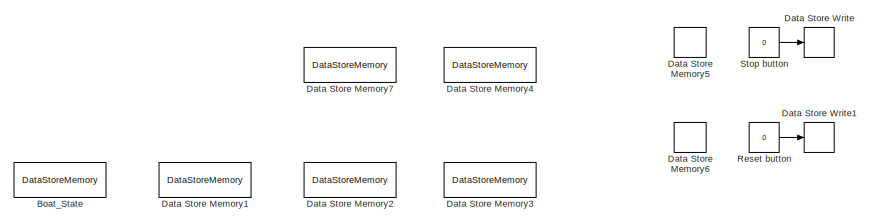
[diagram: root canvas - part 1/9, top left region]
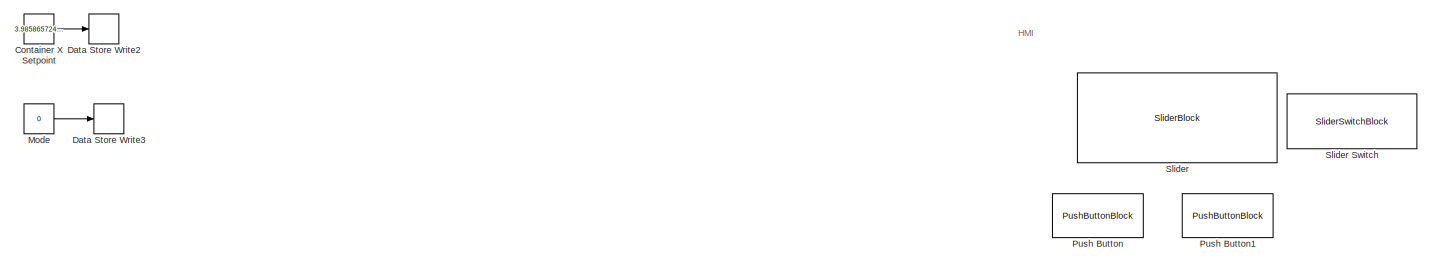
[diagram: root canvas - part 2/9, top center region]
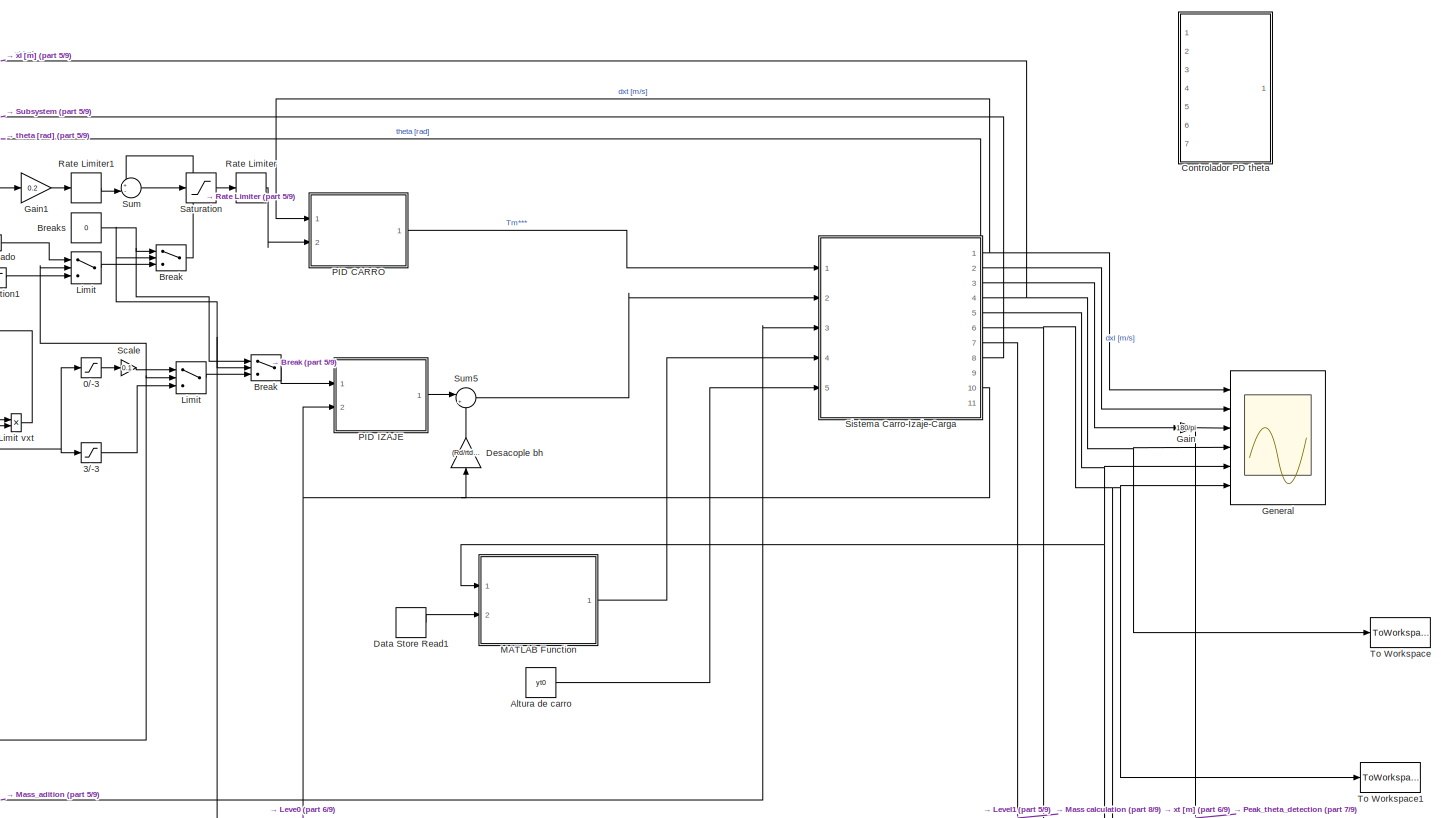
[diagram: root canvas - part 3/9, middle right region]
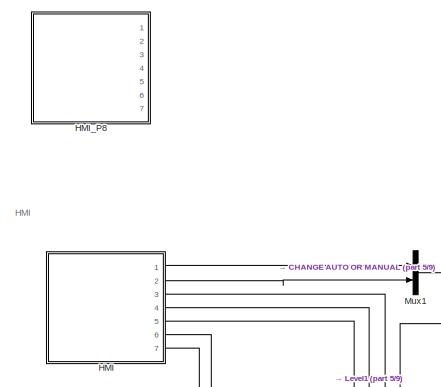
[diagram: root canvas - part 4/9, middle left region]
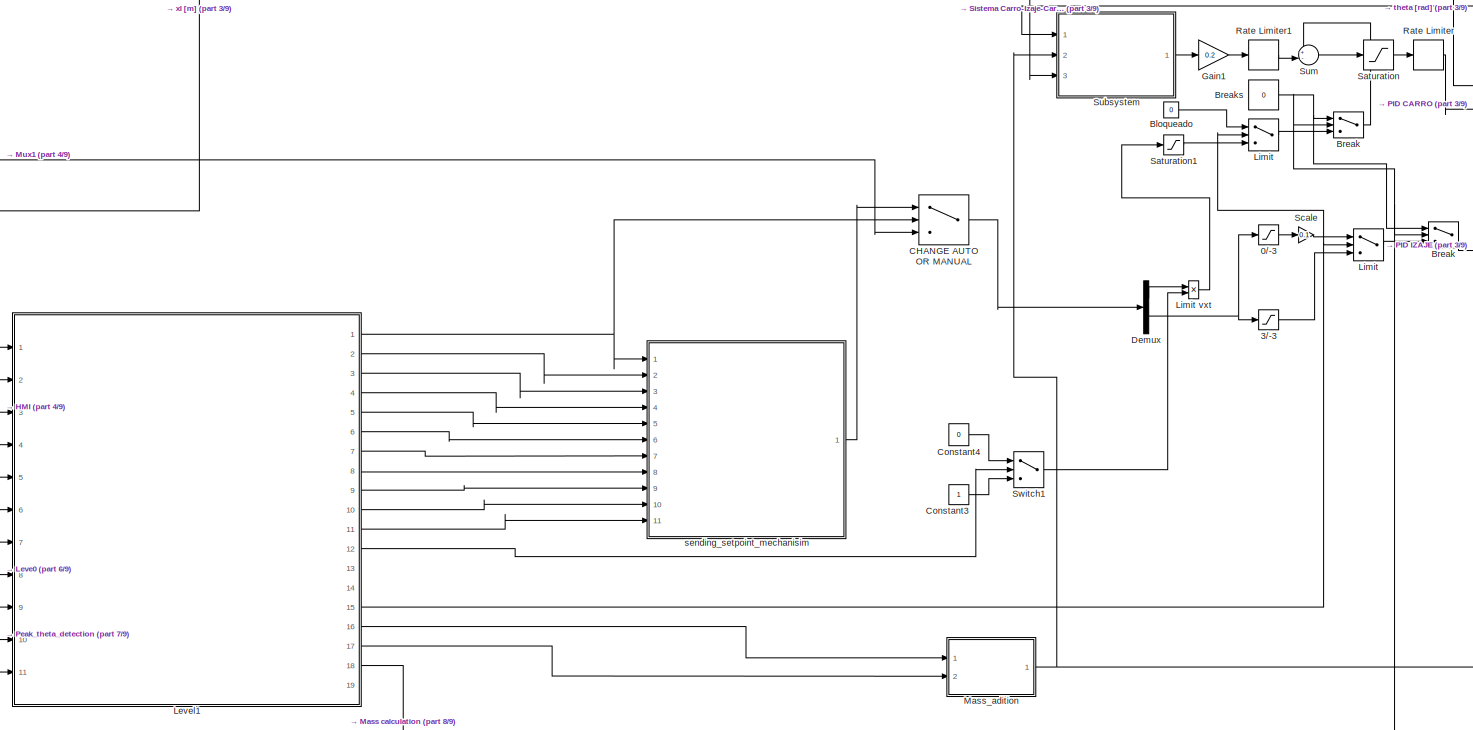
[diagram: root canvas - part 5/9, central region]
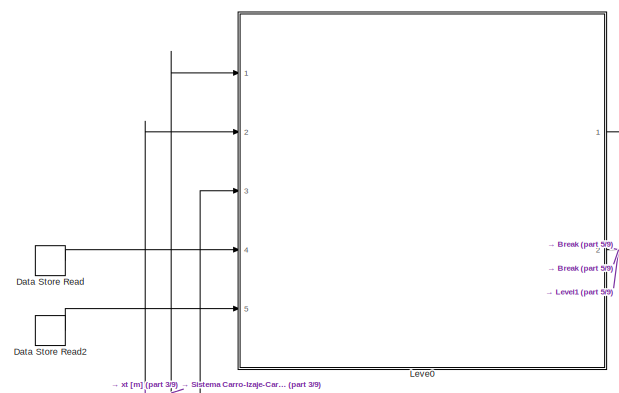
[diagram: root canvas - part 6/9, bottom left region]
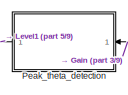
[diagram: root canvas - part 7/9, bottom center region]
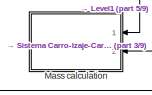
[diagram: root canvas - part 8/9, bottom center region]
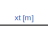
[diagram: root canvas - part 9/9, bottom center region]
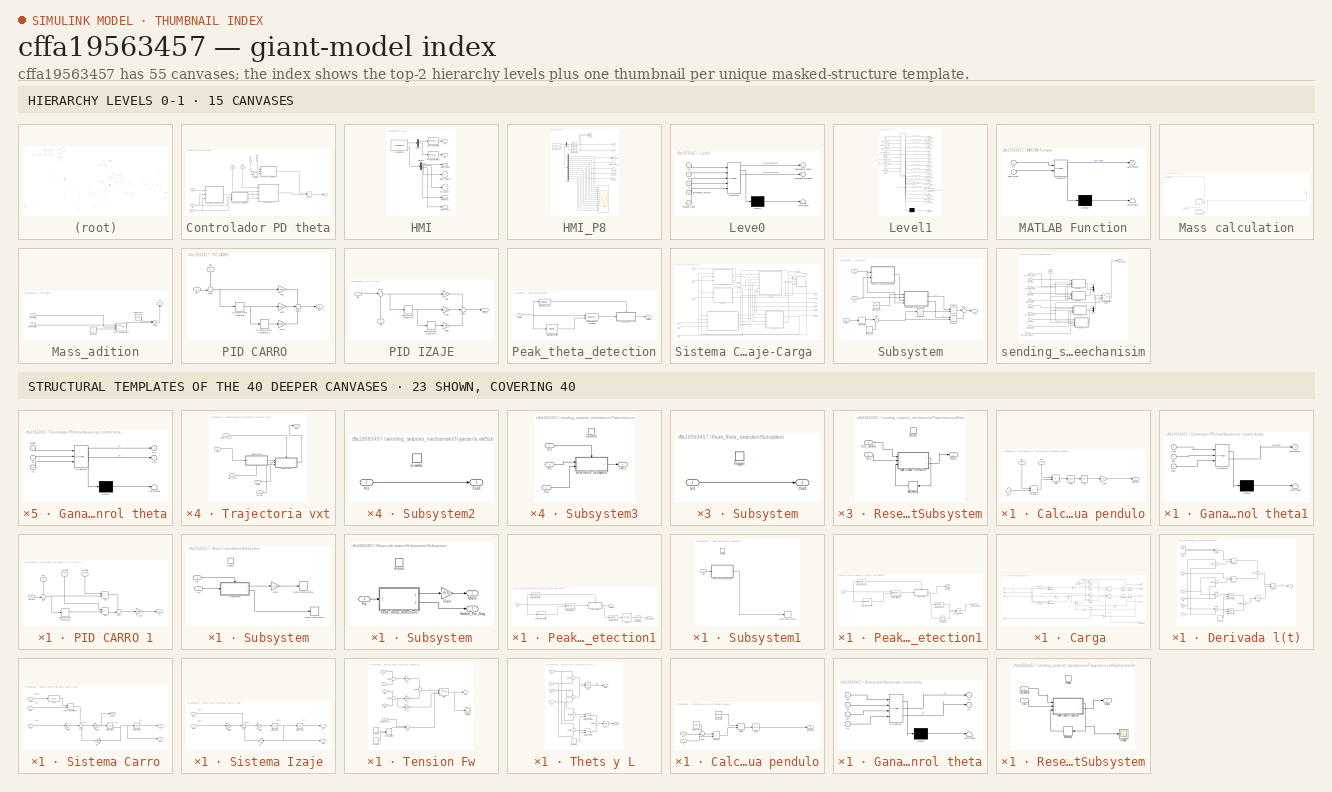
[diagram: thumbnail index - top-2 hierarchy levels (15 canvases) + 23 structural-template representatives of the remaining 40 canvases]
MODEL slx_cffa19563457
KIND model
CONFIG AbsTol = auto
CONFIG EnableMultiTasking = off
CONFIG FixedStep = 1e-4
CONFIG MaxStep = 1e-3
CONFIG MinStep = auto
CONFIG PreLoadFcn = Boat_State = Simulink.Signal;\nBoat_State.DataType = 'double';\nBoat_State.SamplingMode = 'Sample based';\nBoat_State.InitialValue = '[6; 5; 10; 6;  3; 4]';\nBoat_State.StorageClass = 'ExportedGlobal';\nBoat_State.Complexity = 'real';\nBoat_State.Description = 'dsm_description';\n\n
CONFIG RelTol = 1e-3
CONFIG SampleTimeConstraint = Unconstrained
CONFIG Solver = FixedStepAuto
CONFIG SolverName = FixedStepAuto
CONFIG StartTime = 0.0
CONFIG StopTime = inf
BLOCK [Saturate] 0//-3
  LowerLimit = -3.0
  UpperLimit = 0.0
BLOCK [Saturate] 3//-3
  LowerLimit = -3.0
  UpperLimit = 3.0
BLOCK [Constant] Altura de carro
  Value = yt0
BLOCK [Constant] Bloqueado
  Value = 0
BLOCK [DataStoreMemory] Boat_State
  DataStoreName = Boat_State
  InitialValue = [5;5;6;4;8;6]
  OutDataTypeStr = double
  RTWStateStorageClass = ExportedGlobal
  ReadBeforeWriteMsg = warning
  ShowAdditionalParam = off
  SignalType = real
  WriteAfterReadMsg = warning
  WriteAfterWriteMsg = warning
BLOCK [Switch] Break
  Criteria = u2 > Threshold
  InputSameDT = off
  SaturateOnIntegerOverflow = off
BLOCK [Switch] Break 
  Criteria = u2 > Threshold
  InputSameDT = off
  SaturateOnIntegerOverflow = off
BLOCK [Constant] Breaks
  Value = 0
BLOCK [Switch] CHANGE AUTO OR MANUAL
  Criteria = u2 > Threshold
  InputSameDT = off
  SaturateOnIntegerOverflow = off
BLOCK [Constant] Constant3
BLOCK [Constant] Constant4
  Value = 0
BLOCK [Constant] Container X Setpoint
  OutDataTypeStr = int8
  Value = 3.985865724381625
BLOCK [SubSystem] Controlador PD theta
  Ports = [7, 1]
  RequestExecContextInheritance = off
BLOCK [SubSystem] Controlador PD theta/Calculo frecuencia pendulo
  Ports = [3, 1]
  RequestExecContextInheritance = off
BLOCK [Abs] Controlador PD theta/Calculo frecuencia pendulo/Abs
  SaturateOnIntegerOverflow = off
BLOCK [Product] Controlador PD theta/Calculo frecuencia pendulo/Divide
  Inputs = */
  Ports = [2, 1]
BLOCK [Gain] Controlador PD theta/Calculo frecuencia pendulo/Gain
  Gain = 75
BLOCK [Product] Controlador PD theta/Calculo frecuencia pendulo/Product
  Ports = [2, 1]
BLOCK [Sqrt] Controlador PD theta/Calculo frecuencia pendulo/Sqrt
  OutputSignalType = complex
BLOCK [Inport] Controlador PD theta/Calculo frecuencia pendulo/fw 
  NameLocation = right
  Port = 2
BLOCK [Inport] Controlador PD theta/Calculo frecuencia pendulo/lh 1
  NameLocation = top
  Port = 3
BLOCK [Inport] Controlador PD theta/Calculo frecuencia pendulo/ml 
  NameLocation = right
BLOCK [Outport] Controlador PD theta/Calculo frecuencia pendulo/wpendulo 
BLOCK [Derivative] Controlador PD theta/Derivative
BLOCK [SubSystem] Controlador PD theta/Ganancias control theta
  ErrorFcn = Stateflow.Translate.translate
  PermitHierarchicalResolution = ExplicitOnly
  Ports = [3, 2]
  RequestExecContextInheritance = off
  SFBlockType = MATLAB Function
  TreatAsAtomicUnit = on
BLOCK [Demux] Controlador PD theta/Ganancias control theta/ Demux 
  Outputs = 1
  Ports = [1, 1]
BLOCK [S-Function] Controlador PD theta/Ganancias control theta/ SFunction 
  EnableBusSupport = on
  FunctionName = sf_sfun
  PortCounts = [3 3]
  Ports = [3, 3]
  SFcnIsStateOwnerBlock = off
  SFunctionDeploymentMode = off
  Tag = Stateflow S-Function 2
BLOCK [Terminator] Controlador PD theta/Ganancias control theta/ Terminator 
BLOCK [Outport] Controlador PD theta/Ganancias control theta/Kd
  Port = 2
BLOCK [Outport] Controlador PD theta/Ganancias control theta/Kp
BLOCK [Inport] Controlador PD theta/Ganancias control theta/ml
  Port = 2
BLOCK [Inport] Controlador PD theta/Ganancias control theta/mt
  Port = 3
BLOCK [Inport] Controlador PD theta/Ganancias control theta/wpos
BLOCK [SubSystem] Controlador PD theta/Ganancias control theta1
  ErrorFcn = Stateflow.Translate.translate
  PermitHierarchicalResolution = ExplicitOnly
  Ports = [3, 1]
  RequestExecContextInheritance = off
  SFBlockType = MATLAB Function
  TreatAsAtomicUnit = on
BLOCK [Demux] Controlador PD theta/Ganancias control theta1/ Demux 
  Outputs = 1
  Ports = [1, 1]
BLOCK [S-Function] Controlador PD theta/Ganancias control theta1/ SFunction 
  EnableBusSupport = on
  FunctionName = sf_sfun
  PortCounts = [3 2]
  Ports = [3, 2]
  SFcnIsStateOwnerBlock = off
  SFunctionDeploymentMode = off
  Tag = Stateflow S-Function 1
BLOCK [Terminator] Controlador PD theta/Ganancias control theta1/ Terminator 
BLOCK [Inport] Controlador PD theta/Ganancias control theta1/ddxc
  Port = 3
BLOCK [Inport] Controlador PD theta/Ganancias control theta1/dxc
  Port = 2
BLOCK [Inport] Controlador PD theta/Ganancias control theta1/flag
BLOCK [Outport] Controlador PD theta/Ganancias control theta1/saturacion
BLOCK [SubSystem] Controlador PD theta/PID CARRO 1
  Ports = [4, 1]
  RequestExecContextInheritance = off
BLOCK [DiscreteIntegrator] Controlador PD theta/PID CARRO 1/Discrete-Time Integrator1
  ICPrevOutput = DiscIntNeverNeededParam
  ICPrevScaledInput = DiscIntNeverNeededParam
  InitialConditionSetting = Auto
  Ports = [1, 1]
  SampleTime = -1
BLOCK [Product] Controlador PD theta/PID CARRO 1/Kd
  Ports = [2, 1]
BLOCK [Inport] Controlador PD theta/PID CARRO 1/Kd_pdlo
  NameLocation = left
  Port = 4
BLOCK [Product] Controlador PD theta/PID CARRO 1/Kp
  Ports = [2, 1]
BLOCK [Inport] Controlador PD theta/PID CARRO 1/Kp_pdlo
  NameLocation = left
  Port = 3
BLOCK [Sum] Controlador PD theta/PID CARRO 1/Sum
  Inputs = -+|
  Ports = [2, 1]
BLOCK [Sum] Controlador PD theta/PID CARRO 1/Sum1
  Inputs = ++|
  Ports = [2, 1]
BLOCK [Outport] Controlador PD theta/PID CARRO 1/Tp*
BLOCK [Inport] Controlador PD theta/PID CARRO 1/dxl
  NameLocation = left
BLOCK [Inport] Controlador PD theta/PID CARRO 1/dxl*=dxt
  Port = 2
BLOCK [Gain] Controlador PD theta/PID CARRO 1/rt//Rd
  Gain = rt/Rd
BLOCK [Product] Controlador PD theta/Product
  Ports = [2, 1]
BLOCK [Outport] Controlador PD theta/Tc**
BLOCK [Inport] Controlador PD theta/dxc
  NameLocation = left
  Port = 7
BLOCK [Inport] Controlador PD theta/dxl
  NameLocation = right
  Port = 2
BLOCK [Inport] Controlador PD theta/dxl*
  NameLocation = right
BLOCK [Inport] Controlador PD theta/flag 
  NameLocation = left
  Port = 6
BLOCK [Inport] Controlador PD theta/fw
  Port = 4
BLOCK [Inport] Controlador PD theta/lh
  Port = 5
BLOCK [Inport] Controlador PD theta/ml
  Port = 3
BLOCK [DataStoreMemory] Data Store Memory1
  DataStoreName = Load_state
  OutDataTypeStr = int8
  RTWStateStorageClass = ExportedGlobal
  ReadBeforeWriteMsg = warning
  ShowAdditionalParam = off
  SignalType = real
  WriteAfterReadMsg = warning
  WriteAfterWriteMsg = warning
BLOCK [DataStoreMemory] Data Store Memory2
  DataStoreName = Stable_FW_flag
  OutDataTypeStr = boolean
  RTWStateStorageClass = ExportedGlobal
  ReadBeforeWriteMsg = warning
  ShowAdditionalParam = off
  SignalType = real
  WriteAfterReadMsg = warning
  WriteAfterWriteMsg = warning
BLOCK [DataStoreMemory] Data Store Memory3
  DataStoreName = Total_mass
  InitialValue = 15000.0
  OutDataTypeStr = double
  RTWStateStorageClass = ExportedGlobal
  ReadBeforeWriteMsg = warning
  ShowAdditionalParam = off
  SignalType = real
  WriteAfterReadMsg = warning
  WriteAfterWriteMsg = warning
BLOCK [DataStoreMemory] Data Store Memory4
  DataStoreName = container_x_position
  InitialValue = 2.0
  OutDataTypeStr = int8
  RTWStateStorageClass = ExportedGlobal
  ReadBeforeWriteMsg = warning
  ShowAdditionalParam = off
  SignalType = real
  WriteAfterReadMsg = warning
  WriteAfterWriteMsg = warning
BLOCK [DataStoreMemory] Data Store Memory5
  DataStoreName = emergency_buttom
  NameLocation = top
  ReadBeforeWriteMsg = warning
  ShowAdditionalParam = off
  WriteAfterReadMsg = warning
  WriteAfterWriteMsg = warning
BLOCK [DataStoreMemory] Data Store Memory6
  DataStoreName = manual_reset
  ReadBeforeWriteMsg = warning
  ShowAdditionalParam = off
  WriteAfterReadMsg = warning
  WriteAfterWriteMsg = warning
BLOCK [DataStoreMemory] Data Store Memory7
  DataStoreName = Automatic_mode
  OutDataTypeStr = int8
  RTWStateStorageClass = ExportedGlobal
  ReadBeforeWriteMsg = warning
  ShowAdditionalParam = off
  SignalType = real
  WriteAfterReadMsg = warning
  WriteAfterWriteMsg = warning
BLOCK [DataStoreRead] Data Store Read
  DataStoreName = emergency_buttom
  Ports = [0, 1]
BLOCK [DataStoreRead] Data Store Read1
  DataStoreName = Boat_State
  Ports = [0, 1]
BLOCK [DataStoreRead] Data Store Read2
  DataStoreName = manual_reset
  Ports = [0, 1]
BLOCK [DataStoreWrite] Data Store Write
  DataStoreName = emergency_buttom
  Ports = [1]
BLOCK [DataStoreWrite] Data Store Write1
  DataStoreName = manual_reset
  Ports = [1]
BLOCK [DataStoreWrite] Data Store Write2
  DataStoreName = container_x_position
  Ports = [1]
BLOCK [DataStoreWrite] Data Store Write3
  DataStoreName = Automatic_mode
  Ports = [1]
BLOCK [Demux] Demux
  Outputs = 2
  Ports = [1, 2]
BLOCK [Gain] Desacople bh
  Gain = (Rd/rtd)*Bheqd
  NameLocation = right
BLOCK [Gain] Gain
  Gain = 180/pi
BLOCK [Gain] Gain1
  Gain = 0.2
BLOCK [Scope] General
  Floating = off
  NumInputPorts = 6
  Ports = [6]
  ScopeSpecificationString = Simulink.scopes.TimeScopeBlockCfg('CurrentConfiguration', extmgr.ConfigurationSet(extmgr.Configuration('Core','General UI',true),extmgr.Configuration('Core','Source UI',true),extmgr.Configuration('Sources','WiredSimulink',true,'DataLoggingVariableName','Grua_simulink','DataLoggingSaveFormat','StructureWithTime'),extmgr.Configuration('Visuals','Time Domain',true,'SerializedDisplays',{struct('MinYLi...<+4961ch>
BLOCK [SubSystem] HMI
  Ports = [0, 7]
  RequestExecContextInheritance = off
BLOCK [Demux] HMI/Demux
  Outputs = 3
  Ports = [1, 3]
BLOCK [Demux] HMI/Demux1
  Outputs = 6
  Ports = [1, 6]
BLOCK [Outport] HMI/FinishTraj
  Port = 6
BLOCK [Reference] HMI/First-Order Filter  REF=powerlib_meascontrol/Filters/First-Order
Filter
  Ports = [1, 1]
  SourceBlock = powerlib_meascontrol/Filters/First-Order\nFilter
  SourceProductBaseCode = PS
  SourceType = First-Order Filter
BLOCK [Reference] HMI/First-Order Filter1  REF=powerlib_meascontrol/Filters/First-Order
Filter
  Ports = [1, 1]
  SourceBlock = powerlib_meascontrol/Filters/First-Order\nFilter
  SourceProductBaseCode = PS
  SourceType = First-Order Filter
BLOCK [Reference] HMI/Joystick Input  REF=vrlib/Joystick Input
  Ports = [0, 2]
  SourceBlock = vrlib/Joystick Input
  SourceProductBaseCode = SL
  SourceType = Joystick Input
BLOCK [Outport] HMI/ReturnDock
  Port = 7
BLOCK [Outport] HMI/Switch_balance
  Port = 4
BLOCK [Outport] HMI/Switch_mode
  Port = 3
BLOCK [Outport] HMI/TurnONOFF
  Port = 5
BLOCK [Outport] HMI/vxt
BLOCK [Outport] HMI/vyt
  Port = 2
BLOCK [SubSystem] HMI_P8
  Commented = on
  Ports = [0, 7]
  RequestExecContextInheritance = off
BLOCK [Demux] HMI_P8/Demux
  Outputs = 3
  Ports = [1, 3]
BLOCK [Demux] HMI_P8/Demux1
  Outputs = 12
  Ports = [1, 12]
BLOCK [Outport] HMI_P8/FinishTraj
  Port = 6
BLOCK [Reference] HMI_P8/First-Order Filter  REF=powerlib_meascontrol/Filters/First-Order
Filter
  Ports = [1, 1]
  SourceBlock = powerlib_meascontrol/Filters/First-Order\nFilter
  SourceProductBaseCode = PS
  SourceType = First-Order Filter
BLOCK [Reference] HMI_P8/First-Order Filter1  REF=powerlib_meascontrol/Filters/First-Order
Filter
  Ports = [1, 1]
  SourceBlock = powerlib_meascontrol/Filters/First-Order\nFilter
  SourceProductBaseCode = PS
  SourceType = First-Order Filter
BLOCK [Reference] HMI_P8/Joystick Input  REF=vrlib/Joystick Input
  Ports = [0, 2]
  SourceBlock = vrlib/Joystick Input
  SourceProductBaseCode = SL
  SourceType = Joystick Input
BLOCK [Outport] HMI_P8/ReturnDock
  Port = 7
BLOCK [Scope] HMI_P8/Scope
  Floating = off
  NumInputPorts = 12
  Ports = [12]
  ScopeSpecificationString = Simulink.scopes.TimeScopeBlockCfg('CurrentConfiguration', extmgr.ConfigurationSet(extmgr.Configuration('Core','General UI',true),extmgr.Configuration('Core','Source UI',true),extmgr.Configuration('Sources','WiredSimulink',true,'DataLoggingVariableName','ScopeData1'),extmgr.Configuration('Visuals','Time Domain',true,'SerializedDisplays',{struct('MinYLimReal','-1.00000','MaxYLimReal','1.00000','YLab...<+9125ch>
BLOCK [Scope] HMI_P8/Scope1
  Floating = off
  NumInputPorts = 2
  Ports = [2]
  ScopeSpecificationString = Simulink.scopes.TimeScopeBlockCfg('CurrentConfiguration', extmgr.ConfigurationSet(extmgr.Configuration('Core','General UI',true),extmgr.Configuration('Core','Source UI',true),extmgr.Configuration('Sources','WiredSimulink',true,'DataLoggingVariableName','ScopeData1'),extmgr.Configuration('Visuals','Time Domain',true,'SerializedDisplays',{struct('MinYLimReal','-1.25','MaxYLimReal','1.25','YLabelReal...<+2072ch>
BLOCK [Outport] HMI_P8/Switch_balance
  Port = 4
BLOCK [Outport] HMI_P8/Switch_mode
  Port = 3
BLOCK [Outport] HMI_P8/TurnONOFF
  Port = 5
BLOCK [Outport] HMI_P8/vxt
BLOCK [Outport] HMI_P8/vyt
  Port = 2
BLOCK [SubSystem] Leve0
  ErrorFcn = Stateflow.Translate.translate
  PermitHierarchicalResolution = ExplicitOnly
  Ports = [5, 2]
  RequestExecContextInheritance = off
  SFBlockType = Chart
  TreatAsAtomicUnit = on
BLOCK [Demux] Leve0/ Demux 
  Outputs = 1
  Ports = [1, 1]
BLOCK [S-Function] Leve0/ SFunction 
  EnableBusSupport = on
  FunctionName = sf_sfun
  PortCounts = [5 3]
  Ports = [5, 3]
  SFcnIsStateOwnerBlock = off
  SFunctionDeploymentMode = off
  Tag = Stateflow S-Function 9
BLOCK [Terminator] Leve0/ Terminator 
BLOCK [Inport] Leve0/emergency_buttom
  Port = 4
BLOCK [Outport] Leve0/flag_enable_brakes
  Port = 2
BLOCK [Outport] Leve0/flag_enable_level1
BLOCK [Inport] Leve0/manual_reset
  Port = 5
BLOCK [Inport] Leve0/vyt
BLOCK [Inport] Leve0/xt
  Port = 2
BLOCK [Inport] Leve0/yl
  Port = 3
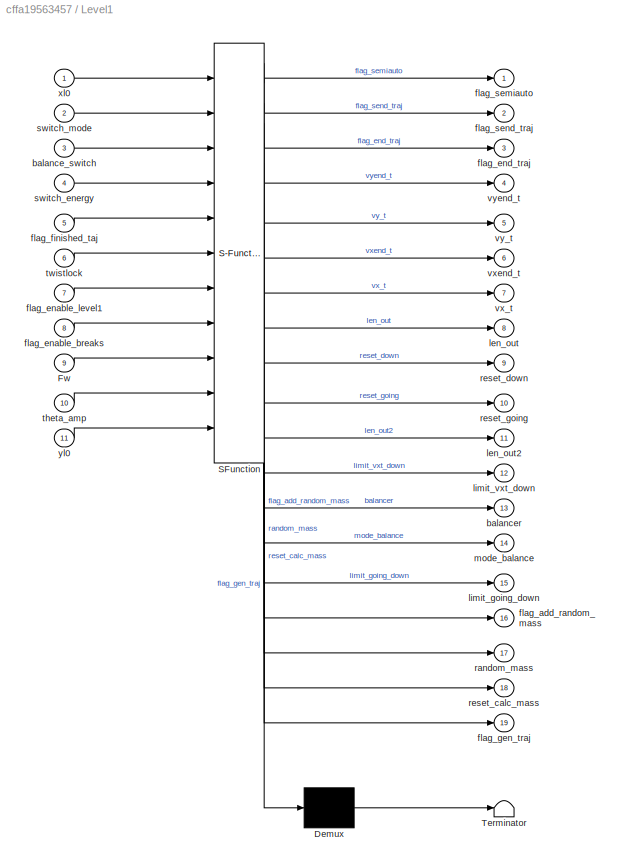
BLOCK [SubSystem] Level1
  ErrorFcn = Stateflow.Translate.translate
  PermitHierarchicalResolution = ExplicitOnly
  Ports = [11, 19]
  RequestExecContextInheritance = off
  SFBlockType = Chart
  TreatAsAtomicUnit = on
BLOCK [Demux] Level1/ Demux 
  Outputs = 1
  Ports = [1, 1]
BLOCK [S-Function] Level1/ SFunction 
  EnableBusSupport = on
  FunctionName = sf_sfun
  PortCounts = [11 20]
  Ports = [11, 20]
  SFcnIsStateOwnerBlock = off
  SFunctionDeploymentMode = off
  Tag = Stateflow S-Function 3
BLOCK [Terminator] Level1/ Terminator 
BLOCK [Inport] Level1/Fw
  Port = 9
BLOCK [Inport] Level1/balance_switch
  Port = 3
BLOCK [Outport] Level1/balancer
  Port = 13
BLOCK [Outport] Level1/flag_add_random_mass
  Port = 16
BLOCK [Inport] Level1/flag_enable_breaks
  Port = 8
BLOCK [Inport] Level1/flag_enable_level1
  Port = 7
BLOCK [Outport] Level1/flag_end_traj
  Port = 3
BLOCK [Inport] Level1/flag_finished_taj
  Port = 5
BLOCK [Outport] Level1/flag_gen_traj
  Port = 19
BLOCK [Outport] Level1/flag_semiauto
BLOCK [Outport] Level1/flag_send_traj
  Port = 2
BLOCK [Outport] Level1/len_out
  Port = 8
BLOCK [Outport] Level1/len_out2
  Port = 11
BLOCK [Outport] Level1/limit_going_down
  Port = 15
BLOCK [Outport] Level1/limit_vxt_down
  Port = 12
BLOCK [Outport] Level1/mode_balance
  Port = 14
BLOCK [Outport] Level1/random_mass
  Port = 17
BLOCK [Outport] Level1/reset_calc_mass
  Port = 18
BLOCK [Outport] Level1/reset_down
  Port = 9
BLOCK [Outport] Level1/reset_going
  Port = 10
BLOCK [Inport] Level1/switch_energy
  Port = 4
BLOCK [Inport] Level1/switch_mode
  Port = 2
BLOCK [Inport] Level1/theta_amp
  Port = 10
BLOCK [Inport] Level1/twistlock
  Port = 6
BLOCK [Outport] Level1/vx_t
  Port = 7
BLOCK [Outport] Level1/vxend_t
  Port = 6
BLOCK [Outport] Level1/vy_t
  Port = 5
BLOCK [Outport] Level1/vyend_t
  Port = 4
BLOCK [Inport] Level1/xl0
BLOCK [Inport] Level1/yl0
  Port = 11
BLOCK [Switch] Limit
  Criteria = u2 > Threshold
  InputSameDT = off
  SaturateOnIntegerOverflow = off
BLOCK [Switch] Limit 
  Criteria = u2 > Threshold
  InputSameDT = off
  SaturateOnIntegerOverflow = off
BLOCK [Product] Limit vxt
  Ports = [2, 1]
BLOCK [SubSystem] MATLAB Function
  ErrorFcn = Stateflow.Translate.translate
  PermitHierarchicalResolution = ExplicitOnly
  Ports = [2, 1]
  RequestExecContextInheritance = off
  SFBlockType = MATLAB Function
  TreatAsAtomicUnit = on
BLOCK [Demux] MATLAB Function/ Demux 
  Outputs = 1
  Ports = [1, 1]
BLOCK [S-Function] MATLAB Function/ SFunction 
  EnableBusSupport = on
  FunctionName = sf_sfun
  PortCounts = [2 2]
  Ports = [2, 2]
  SFcnIsStateOwnerBlock = off
  SFunctionDeploymentMode = off
  Tag = Stateflow S-Function 8
BLOCK [Terminator] MATLAB Function/ Terminator 
BLOCK [Outport] MATLAB Function/base_height
BLOCK [Inport] MATLAB Function/boat_state
  Port = 2
BLOCK [Inport] MATLAB Function/xl0
BLOCK [SubSystem] Mass calculation
  NameLocation = top
  Ports = [2]
  RequestExecContextInheritance = off
BLOCK [DataStoreRead] Mass calculation/Data Store Read
  DataStoreName = Load_state
  Ports = [0, 1]
BLOCK [Inport] Mass calculation/Fw
  NameLocation = right
  Port = 2
BLOCK [SubSystem] Mass calculation/Subsystem
  NameLocation = top
  Ports = [2, 0, 1]
  RequestExecContextInheritance = off
BLOCK [DataStoreWrite] Mass calculation/Subsystem/Data Store Write
  DataStoreName = Stable_FW_flag
  Ports = [1]
BLOCK [DataStoreWrite] Mass calculation/Subsystem/Data Store Write1
  DataStoreName = Total_mass
  Ports = [1]
BLOCK [EnablePort] Mass calculation/Subsystem/Enable
  Ports = []
  StatesWhenEnabling = reset
BLOCK [Inport] Mass calculation/Subsystem/Fw
BLOCK [Gain] Mass calculation/Subsystem/Gain
  Gain = 1/9.81
BLOCK [Inport] Mass calculation/Subsystem/In1
  Port = 2
BLOCK [SubSystem] Mass calculation/Subsystem/Subsystem
  Ports = [1, 2, 0, 0, 0, 0, 0, 0, 1]
  RequestExecContextInheritance = off
BLOCK [Inport] Mass calculation/Subsystem/Subsystem/Fw
BLOCK [Gain] Mass calculation/Subsystem/Subsystem/Gain
  Gain = 1/9.81
BLOCK [Outport] Mass calculation/Subsystem/Subsystem/Mass
BLOCK [SubSystem] Mass calculation/Subsystem/Subsystem/Peak_theta_detection1
  Ports = [1, 2]
  RequestExecContextInheritance = off
BLOCK [Outport] Mass calculation/Subsystem/Subsystem/Peak_theta_detection1/Amplitude
BLOCK [Reference] Mass calculation/Subsystem/Subsystem/Peak_theta_detection1/Compare To Constant1  REF=simulink/Logic and Bit
Operations/Compare
To Constant
  Ports = [1, 1]
  SourceBlock = simulink/Logic and Bit\nOperations/Compare\nTo Constant
  SourceProductBaseCode = SL
  SourceType = Compare To Constant
BLOCK [Reference] Mass calculation/Subsystem/Subsystem/Peak_theta_detection1/Counter  REF=dspswit3/Counter
  Ports = [1, 1]
  SourceBlock = dspswit3/Counter
  SourceProductBaseCode = DS
  SourceType = Counter
BLOCK [Reference] Mass calculation/Subsystem/Subsystem/Peak_theta_detection1/Detect Decrease  REF=simulink/Logic and Bit
Operations/Detect
Decrease
  Ports = [1, 1]
  SourceBlock = simulink/Logic and Bit\nOperations/Detect\nDecrease
  SourceProductBaseCode = SL
  SourceType = Detect Decrease
BLOCK [Reference] Mass calculation/Subsystem/Subsystem/Peak_theta_detection1/Detect Increase  REF=simulink/Logic and Bit
Operations/Detect
Increase
  Ports = [1, 1]
  SourceBlock = simulink/Logic and Bit\nOperations/Detect\nIncrease
  SourceProductBaseCode = SL
  SourceType = Detect Increase
BLOCK [Reference] Mass calculation/Subsystem/Subsystem/Peak_theta_detection1/Detect Rise Positive  REF=simulink/Logic and Bit
Operations/Detect Rise
Positive
  Ports = [1, 1]
  SourceBlock = simulink/Logic and Bit\nOperations/Detect Rise\nPositive
  SourceProductBaseCode = SL
  SourceType = Detect Rise Positive
BLOCK [Inport] Mass calculation/Subsystem/Subsystem/Peak_theta_detection1/Fw
BLOCK [Outport] Mass calculation/Subsystem/Subsystem/Peak_theta_detection1/Logical_output
  Port = 2
BLOCK [Reference] Mass calculation/Subsystem/Subsystem/Peak_theta_detection1/MinMax Running Resettable  REF=simulink/Math
Operations/MinMax
Running
Resettable
  Ports = [2, 1]
  SourceBlock = simulink/Math\nOperations/MinMax\nRunning\nResettable
  SourceProductBaseCode = SL
  SourceType = MinMax Running Resettable
BLOCK [SubSystem] Mass calculation/Subsystem/Subsystem/Peak_theta_detection1/Subsystem
  Ports = [1, 1, 0, 1]
  RequestExecContextInheritance = off
BLOCK [Inport] Mass calculation/Subsystem/Subsystem/Peak_theta_detection1/Subsystem/In1
BLOCK [Outport] Mass calculation/Subsystem/Subsystem/Peak_theta_detection1/Subsystem/Out1
BLOCK [TriggerPort] Mass calculation/Subsystem/Subsystem/Peak_theta_detection1/Subsystem/Trigger
  PortDimensions = 1
  Ports = []
  StatesWhenEnabling = held
  VariantControl = Variant
BLOCK [ResetPort] Mass calculation/Subsystem/Subsystem/Reset
  DisableCoverage = on
  ResetTriggerType = either
BLOCK [Outport] Mass calculation/Subsystem/Subsystem/Stable_Fw_flag
  Port = 2
BLOCK [SubSystem] Mass calculation/Subsystem1
  NameLocation = top
  Ports = [1, 0, 1]
  RequestExecContextInheritance = off
BLOCK [DataStoreWrite] Mass calculation/Subsystem1/Data Store Write
  DataStoreName = Stable_FW_flag
  Ports = [1]
BLOCK [EnablePort] Mass calculation/Subsystem1/Enable
  Ports = []
BLOCK [Inport] Mass calculation/Subsystem1/Fw
BLOCK [SubSystem] Mass calculation/Subsystem1/Peak_theta_detection1
  Ports = [1, 1]
  RequestExecContextInheritance = off
BLOCK [Reference] Mass calculation/Subsystem1/Peak_theta_detection1/Compare To Constant  REF=simulink/Logic and Bit
Operations/Compare
To Constant
  Ports = [1, 1]
  SourceBlock = simulink/Logic and Bit\nOperations/Compare\nTo Constant
  SourceProductBaseCode = SL
  SourceType = Compare To Constant
BLOCK [Reference] Mass calculation/Subsystem1/Peak_theta_detection1/Detect Decrease  REF=simulink/Logic and Bit
Operations/Detect
Decrease
  Ports = [1, 1]
  SourceBlock = simulink/Logic and Bit\nOperations/Detect\nDecrease
  SourceProductBaseCode = SL
  SourceType = Detect Decrease
BLOCK [Reference] Mass calculation/Subsystem1/Peak_theta_detection1/Detect Increase  REF=simulink/Logic and Bit
Operations/Detect
Increase
  Ports = [1, 1]
  SourceBlock = simulink/Logic and Bit\nOperations/Detect\nIncrease
  SourceProductBaseCode = SL
  SourceType = Detect Increase
BLOCK [Reference] Mass calculation/Subsystem1/Peak_theta_detection1/Detect Rise Positive  REF=simulink/Logic and Bit
Operations/Detect Rise
Positive
  Ports = [1, 1]
  SourceBlock = simulink/Logic and Bit\nOperations/Detect Rise\nPositive
  SourceProductBaseCode = SL
  SourceType = Detect Rise Positive
BLOCK [Inport] Mass calculation/Subsystem1/Peak_theta_detection1/Fw
BLOCK [Logic] Mass calculation/Subsystem1/Peak_theta_detection1/Logical Operator
  AllPortsSameDT = off
  OutDataTypeStr = boolean
  Ports = [2, 1]
BLOCK [Outport] Mass calculation/Subsystem1/Peak_theta_detection1/Logical_output
BLOCK [Reference] Mass calculation/Subsystem1/Peak_theta_detection1/MinMax Running Resettable  REF=simulink/Math
Operations/MinMax
Running
Resettable
  Ports = [2, 1]
  SourceBlock = simulink/Math\nOperations/MinMax\nRunning\nResettable
  SourceProductBaseCode = SL
  SourceType = MinMax Running Resettable
BLOCK [Scope] Mass calculation/Subsystem1/Peak_theta_detection1/Scope
  Floating = off
  NumInputPorts = 1
  Ports = [1]
  ScopeSpecificationString = Simulink.scopes.TimeScopeBlockCfg('CurrentConfiguration', extmgr.ConfigurationSet(extmgr.Configuration('Core','General UI',true),extmgr.Configuration('Core','Source UI',true),extmgr.Configuration('Sources','WiredSimulink',true,'DataLoggingVariableName','ScopeData1'),extmgr.Configuration('Visuals','Time Domain',true,'SerializedDisplays',{struct('MinYLimReal','-20298.34457','MaxYLimReal','182685.101...<+1554ch>
BLOCK [SubSystem] Mass calculation/Subsystem1/Peak_theta_detection1/Subsystem
  Ports = [1, 1, 0, 1]
  RequestExecContextInheritance = off
BLOCK [Inport] Mass calculation/Subsystem1/Peak_theta_detection1/Subsystem/In1
BLOCK [Outport] Mass calculation/Subsystem1/Peak_theta_detection1/Subsystem/Out1
BLOCK [TriggerPort] Mass calculation/Subsystem1/Peak_theta_detection1/Subsystem/Trigger
  PortDimensions = 1
  Ports = []
  StatesWhenEnabling = held
  VariantControl = Variant
BLOCK [Inport] Mass calculation/reset_mass_flag
BLOCK [SubSystem] Mass_adition
  Ports = [2, 1]
  RequestExecContextInheritance = off
BLOCK [Inport] Mass_adition/Add_mass
BLOCK [Constant] Mass_adition/Constant
  Value = 0
BLOCK [Constant] Mass_adition/Constant2
  Value = 15000
BLOCK [Inport] Mass_adition/Rand_mass
  Port = 2
BLOCK [Sum] Mass_adition/Sum1
  Ports = [2, 1]
BLOCK [Switch] Mass_adition/add_random_mass
  Criteria = u2 > Threshold
  InputSameDT = off
  SaturateOnIntegerOverflow = off
BLOCK [Outport] Mass_adition/ml
  NameLocation = right
BLOCK [Constant] Mode
  OutDataTypeStr = int8
  Value = 0
BLOCK [Mux] Mux1
  DisplayOption = bar
  Inputs = 2
  Ports = [2, 1]
BLOCK [SubSystem] PID CARRO 
  Ports = [2, 1]
  RequestExecContextInheritance = off
BLOCK [DiscreteIntegrator] PID CARRO /Discrete-Time Integrator
  ICPrevOutput = DiscIntNeverNeededParam
  ICPrevScaledInput = DiscIntNeverNeededParam
  InitialConditionSetting = Auto
  Ports = [1, 1]
  SampleTime = -1
BLOCK [DiscreteIntegrator] PID CARRO /Discrete-Time Integrator1
  ICPrevOutput = DiscIntNeverNeededParam
  ICPrevScaledInput = DiscIntNeverNeededParam
  InitialConditionSetting = Auto
  Ports = [1, 1]
  SampleTime = -1
BLOCK [Sum] PID CARRO /Sum
  Inputs = -+|
  Ports = [2, 1]
BLOCK [Sum] PID CARRO /Sum1
  Inputs = +++
  Ports = [3, 1]
BLOCK [Outport] PID CARRO /Tm*
BLOCK [Gain] PID CARRO /bac
  Gain = bac
BLOCK [Inport] PID CARRO /dxt
  NameLocation = left
BLOCK [Inport] PID CARRO /dxt*
  Port = 2
BLOCK [Gain] PID CARRO /ksac
  Gain = ksac
BLOCK [Gain] PID CARRO /ksiac
  Gain = ksiac
BLOCK [SubSystem] PID IZAJE
  Ports = [2, 1]
  RequestExecContextInheritance = off
BLOCK [DiscreteIntegrator] PID IZAJE/Discrete-Time Integrator1
  ICPrevOutput = DiscIntNeverNeededParam
  ICPrevScaledInput = DiscIntNeverNeededParam
  InitialConditionSetting = Auto
  Ports = [1, 1]
  SampleTime = -1
BLOCK [DiscreteIntegrator] PID IZAJE/Discrete-Time Integrator2
  ICPrevOutput = DiscIntNeverNeededParam
  ICPrevScaledInput = DiscIntNeverNeededParam
  InitialConditionSetting = Auto
  Ports = [1, 1]
  SampleTime = -1
BLOCK [Sum] PID IZAJE/Sum2
  Inputs = |+-
  Ports = [2, 1]
BLOCK [Sum] PID IZAJE/Sum3
  Inputs = +++
  Ports = [3, 1]
BLOCK [Outport] PID IZAJE/Tmh* 
BLOCK [Gain] PID IZAJE/baiz
  Gain = baiz
BLOCK [Inport] PID IZAJE/dlh
  NameLocation = left
  Port = 2
BLOCK [Inport] PID IZAJE/dlh*
BLOCK [Gain] PID IZAJE/ksaiz
  Gain = ksaiz
BLOCK [Gain] PID IZAJE/ksiaiz
  Gain = ksiaiz
BLOCK [SubSystem] Peak_theta_detection
  NameLocation = top
  Ports = [1, 1]
  RequestExecContextInheritance = off
  TreatAsAtomicUnit = on
BLOCK [Outport] Peak_theta_detection/Amplitude
BLOCK [Reference] Peak_theta_detection/Detect Decrease  REF=simulink/Logic and Bit
Operations/Detect
Decrease
  Ports = [1, 1]
  SourceBlock = simulink/Logic and Bit\nOperations/Detect\nDecrease
  SourceProductBaseCode = SL
  SourceType = Detect Decrease
BLOCK [Reference] Peak_theta_detection/Detect Rise Positive  REF=simulink/Logic and Bit
Operations/Detect Rise
Positive
  Ports = [1, 1]
  SourceBlock = simulink/Logic and Bit\nOperations/Detect Rise\nPositive
  SourceProductBaseCode = SL
  SourceType = Detect Rise Positive
BLOCK [Reference] Peak_theta_detection/MinMax Running Resettable  REF=simulink/Math
Operations/MinMax
Running
Resettable
  Ports = [2, 1]
  SourceBlock = simulink/Math\nOperations/MinMax\nRunning\nResettable
  SourceProductBaseCode = SL
  SourceType = MinMax Running Resettable
BLOCK [SubSystem] Peak_theta_detection/Subsystem
  Ports = [1, 1, 0, 1]
  RequestExecContextInheritance = off
BLOCK [Inport] Peak_theta_detection/Subsystem/In1
BLOCK [Outport] Peak_theta_detection/Subsystem/Out1
BLOCK [TriggerPort] Peak_theta_detection/Subsystem/Trigger
  PortDimensions = 1
  Ports = []
  StatesWhenEnabling = held
  VariantControl = Variant
BLOCK [Inport] Peak_theta_detection/Theta
BLOCK [PushButtonBlock] Push Button
  ButtonText = STOP
  LabelPosition = Top
BLOCK [PushButtonBlock] Push Button1
  ButtonText = RESET
  LabelPosition = Top
BLOCK [RateLimiter] Rate Limiter
  SampleTimeMode = inherited
BLOCK [RateLimiter] Rate Limiter1
  SampleTimeMode = inherited
BLOCK [Constant] Reset button
  Value = 0
BLOCK [Saturate] Saturation
  LowerLimit = -4
  UpperLimit = 4
BLOCK [Saturate] Saturation1
  LowerLimit = -4.0
  UpperLimit = 4.0
BLOCK [Gain] Scale
  Gain = 0.1
BLOCK [SubSystem] Sistema Carro-Izaje-Carga 
  Ports = [5, 11]
  RequestExecContextInheritance = off
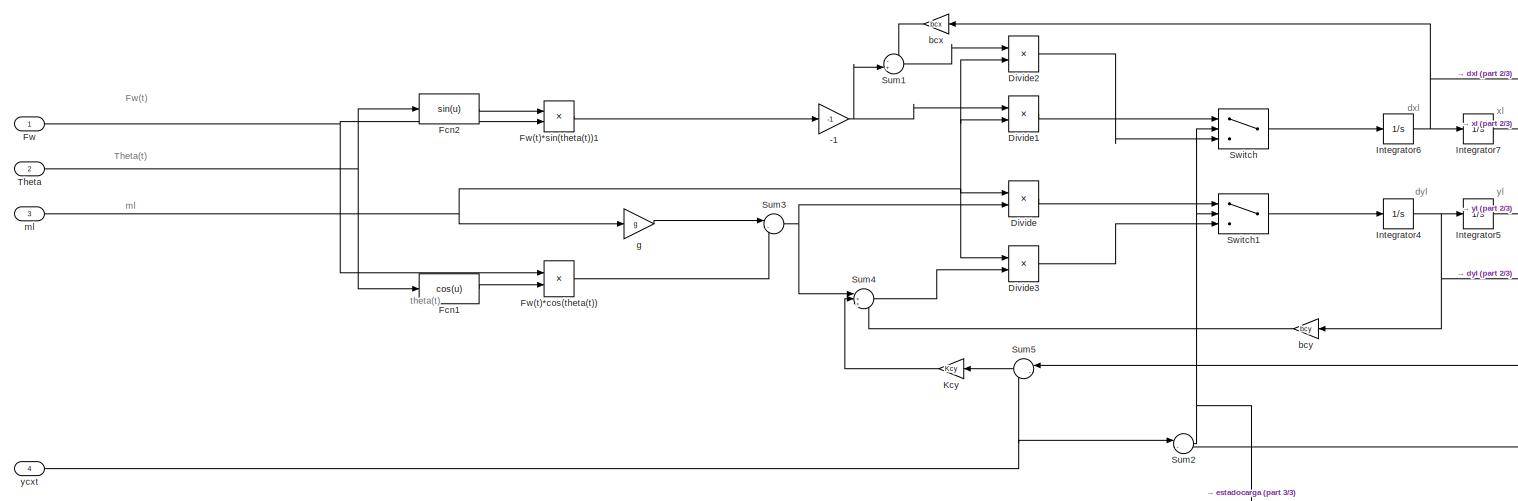
[diagram: Sistema Carro-Izaje-Carga /Carga  - part 1/3, most of the canvas]
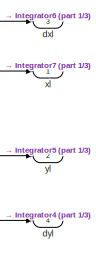
[diagram: Sistema Carro-Izaje-Carga /Carga  - part 2/3, middle right region]
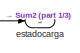
[diagram: Sistema Carro-Izaje-Carga /Carga  - part 3/3, bottom right region]
BLOCK [SubSystem] Sistema Carro-Izaje-Carga /Carga 
  Ports = [4, 5]
  RequestExecContextInheritance = off
BLOCK [Gain] Sistema Carro-Izaje-Carga /Carga /-1
  Gain = -1
BLOCK [Product] Sistema Carro-Izaje-Carga /Carga /Divide
  Inputs = /*
  Ports = [2, 1]
BLOCK [Product] Sistema Carro-Izaje-Carga /Carga /Divide1
  Inputs = */
  Ports = [2, 1]
BLOCK [Product] Sistema Carro-Izaje-Carga /Carga /Divide2
  Inputs = */
  Ports = [2, 1]
BLOCK [Product] Sistema Carro-Izaje-Carga /Carga /Divide3
  Inputs = /*
  Ports = [2, 1]
BLOCK [Fcn] Sistema Carro-Izaje-Carga /Carga /Fcn1
  Expr = cos(u)
BLOCK [Fcn] Sistema Carro-Izaje-Carga /Carga /Fcn2
  Expr = sin(u)
BLOCK [Inport] Sistema Carro-Izaje-Carga /Carga /Fw
BLOCK [Product] Sistema Carro-Izaje-Carga /Carga /Fw(t)*cos(theta(t))
  Ports = [2, 1]
BLOCK [Product] Sistema Carro-Izaje-Carga /Carga /Fw(t)*sin(theta(t))1
  Ports = [2, 1]
BLOCK [Integrator] Sistema Carro-Izaje-Carga /Carga /Integrator4
  Ports = [1, 1]
BLOCK [Integrator] Sistema Carro-Izaje-Carga /Carga /Integrator5
  InitialCondition = yl0
  Ports = [1, 1]
BLOCK [Integrator] Sistema Carro-Izaje-Carga /Carga /Integrator6
  Ports = [1, 1]
BLOCK [Integrator] Sistema Carro-Izaje-Carga /Carga /Integrator7
  InitialCondition = xl0
  Ports = [1, 1]
BLOCK [Gain] Sistema Carro-Izaje-Carga /Carga /Kcy
  Gain = Kcy
  NameLocation = top
BLOCK [Sum] Sistema Carro-Izaje-Carga /Carga /Sum1
  Inputs = -+|
  Ports = [2, 1]
BLOCK [Sum] Sistema Carro-Izaje-Carga /Carga /Sum2
  Inputs = |-+
  Ports = [2, 1]
BLOCK [Sum] Sistema Carro-Izaje-Carga /Carga /Sum3
  Inputs = |-+
  Ports = [2, 1]
BLOCK [Sum] Sistema Carro-Izaje-Carga /Carga /Sum4
  Inputs = |++-
  Ports = [3, 1]
BLOCK [Sum] Sistema Carro-Izaje-Carga /Carga /Sum5
  Inputs = |-+
  NameLocation = top
  Ports = [2, 1]
BLOCK [Switch] Sistema Carro-Izaje-Carga /Carga /Switch
  Criteria = u2 > Threshold
  InputSameDT = off
  SaturateOnIntegerOverflow = off
BLOCK [Switch] Sistema Carro-Izaje-Carga /Carga /Switch1
  Criteria = u2 > Threshold
  InputSameDT = off
  SaturateOnIntegerOverflow = off
BLOCK [Inport] Sistema Carro-Izaje-Carga /Carga /Theta
  Port = 2
BLOCK [Gain] Sistema Carro-Izaje-Carga /Carga /bcx
  Gain = bcx
  NameLocation = top
BLOCK [Gain] Sistema Carro-Izaje-Carga /Carga /bcy
  Gain = bcy
  NameLocation = top
BLOCK [Outport] Sistema Carro-Izaje-Carga /Carga /dxl
  Port = 3
BLOCK [Outport] Sistema Carro-Izaje-Carga /Carga /dyl
  Port = 4
BLOCK [Outport] Sistema Carro-Izaje-Carga /Carga /estadocarga 
  Port = 5
BLOCK [Gain] Sistema Carro-Izaje-Carga /Carga /g
  Gain = g
BLOCK [Inport] Sistema Carro-Izaje-Carga /Carga /ml
  Port = 3
BLOCK [Outport] Sistema Carro-Izaje-Carga /Carga /xl
BLOCK [Inport] Sistema Carro-Izaje-Carga /Carga /ycxt
  Port = 4
BLOCK [Outport] Sistema Carro-Izaje-Carga /Carga /yl
  Port = 2
BLOCK [SubSystem] Sistema Carro-Izaje-Carga /Derivada l(t)
  Ports = [7, 1]
  RequestExecContextInheritance = off
BLOCK [Constant] Sistema Carro-Izaje-Carga /Derivada l(t)/Constant
  Value = 2
BLOCK [Product] Sistema Carro-Izaje-Carga /Derivada l(t)/Divide2
  Inputs = */
  Ports = [2, 1]
BLOCK [Math] Sistema Carro-Izaje-Carga /Derivada l(t)/Math Function
  Operator = pow
  Ports = [2, 1]
  SignedPower = on
BLOCK [Math] Sistema Carro-Izaje-Carga /Derivada l(t)/Math Function1
  Operator = pow
  Ports = [2, 1]
  SignedPower = on
BLOCK [Product] Sistema Carro-Izaje-Carga /Derivada l(t)/Product
  Ports = [2, 1]
BLOCK [Product] Sistema Carro-Izaje-Carga /Derivada l(t)/Product1
  Ports = [2, 1]
BLOCK [Sqrt] Sistema Carro-Izaje-Carga /Derivada l(t)/Sqrt
BLOCK [Sum] Sistema Carro-Izaje-Carga /Derivada l(t)/Sum2
  Inputs = -+
  Ports = [2, 1]
BLOCK [Sum] Sistema Carro-Izaje-Carga /Derivada l(t)/Sum4
  Inputs = -+
  Ports = [2, 1]
BLOCK [Sum] Sistema Carro-Izaje-Carga /Derivada l(t)/Sum5
  Ports = [2, 1]
BLOCK [Sum] Sistema Carro-Izaje-Carga /Derivada l(t)/Sum6
  Inputs = -+
  Ports = [2, 1]
BLOCK [Sum] Sistema Carro-Izaje-Carga /Derivada l(t)/Sum7
  Inputs = -+
  Ports = [2, 1]
BLOCK [Sum] Sistema Carro-Izaje-Carga /Derivada l(t)/Sum8
  Inputs = -+
  Ports = [2, 1]
BLOCK [Sum] Sistema Carro-Izaje-Carga /Derivada l(t)/Sum9
  Inputs = +-
  Ports = [2, 1]
BLOCK [Outport] Sistema Carro-Izaje-Carga /Derivada l(t)/dl
BLOCK [Inport] Sistema Carro-Izaje-Carga /Derivada l(t)/dly
  Port = 3
BLOCK [Inport] Sistema Carro-Izaje-Carga /Derivada l(t)/dxl
  Port = 2
BLOCK [Inport] Sistema Carro-Izaje-Carga /Derivada l(t)/dxt
BLOCK [Inport] Sistema Carro-Izaje-Carga /Derivada l(t)/xl
  Port = 7
BLOCK [Inport] Sistema Carro-Izaje-Carga /Derivada l(t)/xt
  Port = 6
BLOCK [Inport] Sistema Carro-Izaje-Carga /Derivada l(t)/yl
  Port = 4
BLOCK [Inport] Sistema Carro-Izaje-Carga /Derivada l(t)/yt0
  Port = 5
BLOCK [Outport] Sistema Carro-Izaje-Carga /Fw
  Port = 7
BLOCK [SubSystem] Sistema Carro-Izaje-Carga /Sistema Carro
  Ports = [3, 3]
  RequestExecContextInheritance = off
BLOCK [Gain] Sistema Carro-Izaje-Carga /Sistema Carro/1//Meq1
  Gain = 1/Meq
BLOCK [Fcn] Sistema Carro-Izaje-Carga /Sistema Carro/Fcn
  Expr = sin(u)
BLOCK [Inport] Sistema Carro-Izaje-Carga /Sistema Carro/Fw
  Port = 2
BLOCK [Product] Sistema Carro-Izaje-Carga /Sistema Carro/Fw(t)*sin(theta(t))
  Ports = [2, 1]
BLOCK [Integrator] Sistema Carro-Izaje-Carga /Sistema Carro/Integrator2
  Ports = [1, 1]
BLOCK [Integrator] Sistema Carro-Izaje-Carga /Sistema Carro/Integrator3
  InitialCondition = xt0
  Ports = [1, 1]
BLOCK [Sum] Sistema Carro-Izaje-Carga /Sistema Carro/Sum1
  Inputs = ++-
  Ports = [3, 1]
BLOCK [Inport] Sistema Carro-Izaje-Carga /Sistema Carro/Theta
BLOCK [Inport] Sistema Carro-Izaje-Carga /Sistema Carro/Tm
  Port = 3
BLOCK [Gain] Sistema Carro-Izaje-Carga /Sistema Carro/bt1
  Gain = Beqtran
  NameLocation = top
BLOCK [Outport] Sistema Carro-Izaje-Carga /Sistema Carro/ddxt 
  Port = 3
BLOCK [Outport] Sistema Carro-Izaje-Carga /Sistema Carro/dxt 
BLOCK [Gain] Sistema Carro-Izaje-Carga /Sistema Carro/rt//Rd
  Gain = rt/Rr
BLOCK [Outport] Sistema Carro-Izaje-Carga /Sistema Carro/xt
  Port = 2
BLOCK [SubSystem] Sistema Carro-Izaje-Carga /Sistema Izaje
  Ports = [2, 2]
  RequestExecContextInheritance = off
BLOCK [Gain] Sistema Carro-Izaje-Carga /Sistema Izaje/1//Meq
  Gain = 1/Mheq
BLOCK [Inport] Sistema Carro-Izaje-Carga /Sistema Izaje/Fw
BLOCK [Integrator] Sistema Carro-Izaje-Carga /Sistema Izaje/Integrator
  Ports = [1, 1]
BLOCK [Integrator] Sistema Carro-Izaje-Carga /Sistema Izaje/Integrator1
  InitialCondition = lh0
  Ports = [1, 1]
BLOCK [Sum] Sistema Carro-Izaje-Carga /Sistema Izaje/Sum
  Inputs = ++-
  Ports = [3, 1]
BLOCK [Inport] Sistema Carro-Izaje-Carga /Sistema Izaje/Tmh
  Port = 2
BLOCK [Gain] Sistema Carro-Izaje-Carga /Sistema Izaje/bt
  Gain = Bheqd
  NameLocation = top
BLOCK [Outport] Sistema Carro-Izaje-Carga /Sistema Izaje/dlh
  Port = 2
BLOCK [Outport] Sistema Carro-Izaje-Carga /Sistema Izaje/lh
BLOCK [Gain] Sistema Carro-Izaje-Carga /Sistema Izaje/rtd//Rd
  Gain = -rtd/Rd
BLOCK [SubSystem] Sistema Carro-Izaje-Carga /Tension Fw
  Ports = [5, 1]
  RequestExecContextInheritance = off
BLOCK [Constant] Sistema Carro-Izaje-Carga /Tension Fw/Constant
BLOCK [Constant] Sistema Carro-Izaje-Carga /Tension Fw/Constant1
  Value = 0
BLOCK [Outport] Sistema Carro-Izaje-Carga /Tension Fw/Fw 
BLOCK [ManualSwitch] Sistema Carro-Izaje-Carga /Tension Fw/Manual Switch
BLOCK [Scope] Sistema Carro-Izaje-Carga /Tension Fw/Scope
  Floating = off
  NumInputPorts = 1
  Ports = [1]
  ScopeSpecificationString = Simulink.scopes.TimeScopeBlockCfg('CurrentConfiguration', extmgr.ConfigurationSet(extmgr.Configuration('Core','General UI',true),extmgr.Configuration('Core','Source UI',true),extmgr.Configuration('Sources','WiredSimulink',true,'DataLoggingVariableName','ScopeData1'),extmgr.Configuration('Visuals','Time Domain',true,'SerializedDisplays',{struct('MinYLimReal','-98036.45546','MaxYLimReal','479184.163...<+1472ch>
BLOCK [Sum] Sistema Carro-Izaje-Carga /Tension Fw/Sum
  Inputs = |++
  Ports = [2, 1]
BLOCK [Sum] Sistema Carro-Izaje-Carga /Tension Fw/Sum2
  Inputs = -+
  Ports = [2, 1]
BLOCK [Sum] Sistema Carro-Izaje-Carga /Tension Fw/Sum4
  Inputs = -+
  Ports = [2, 1]
BLOCK [Sum] Sistema Carro-Izaje-Carga /Tension Fw/Sum5
  Ports = [2, 1]
BLOCK [Switch] Sistema Carro-Izaje-Carga /Tension Fw/Switch
  Criteria = u2 > Threshold
  InputSameDT = off
  SaturateOnIntegerOverflow = off
BLOCK [Inport] Sistema Carro-Izaje-Carga /Tension Fw/dl
  Port = 4
BLOCK [Inport] Sistema Carro-Izaje-Carga /Tension Fw/dlh
  Port = 3
BLOCK [Inport] Sistema Carro-Izaje-Carga /Tension Fw/estadocarga
  Port = 5
BLOCK [Gain] Sistema Carro-Izaje-Carga /Tension Fw/g1
  Gain = Kw
BLOCK [Gain] Sistema Carro-Izaje-Carga /Tension Fw/g2
  Gain = bw
BLOCK [Gain] Sistema Carro-Izaje-Carga /Tension Fw/g3
  Gain = bw
BLOCK [Inport] Sistema Carro-Izaje-Carga /Tension Fw/l
  Port = 2
BLOCK [Inport] Sistema Carro-Izaje-Carga /Tension Fw/lh
BLOCK [SubSystem] Sistema Carro-Izaje-Carga /Thets y L
  Ports = [4, 2]
  RequestExecContextInheritance = off
BLOCK [Trigonometry] Sistema Carro-Izaje-Carga /Thets y L/Atan2
  Operator = atan2
  Ports = [2, 1]
BLOCK [Constant] Sistema Carro-Izaje-Carga /Thets y L/Constant
  Value = 2
BLOCK [Math] Sistema Carro-Izaje-Carga /Thets y L/Math Function
  Operator = pow
  Ports = [2, 1]
  SignedPower = on
BLOCK [Math] Sistema Carro-Izaje-Carga /Thets y L/Math Function1
  Operator = pow
  Ports = [2, 1]
  SignedPower = on
BLOCK [Sqrt] Sistema Carro-Izaje-Carga /Thets y L/Sqrt
BLOCK [Sum] Sistema Carro-Izaje-Carga /Thets y L/Sum1
  Inputs = -+
  Ports = [2, 1]
BLOCK [Sum] Sistema Carro-Izaje-Carga /Thets y L/Sum2
  Inputs = -+
  Ports = [2, 1]
BLOCK [Sum] Sistema Carro-Izaje-Carga /Thets y L/Sum3
  Inputs = -+
  Ports = [2, 1]
BLOCK [Sum] Sistema Carro-Izaje-Carga /Thets y L/Sum4
  Inputs = -+
  Ports = [2, 1]
BLOCK [Sum] Sistema Carro-Izaje-Carga /Thets y L/Sum5
  Ports = [2, 1]
BLOCK [Outport] Sistema Carro-Izaje-Carga /Thets y L/l 
  Port = 2
BLOCK [Outport] Sistema Carro-Izaje-Carga /Thets y L/theta 
BLOCK [Inport] Sistema Carro-Izaje-Carga /Thets y L/xl
  Port = 2
BLOCK [Inport] Sistema Carro-Izaje-Carga /Thets y L/xt
BLOCK [Inport] Sistema Carro-Izaje-Carga /Thets y L/yl
  Port = 3
BLOCK [Inport] Sistema Carro-Izaje-Carga /Thets y L/yt0
  Port = 4
BLOCK [Inport] Sistema Carro-Izaje-Carga /Tm
BLOCK [Inport] Sistema Carro-Izaje-Carga /Tmh
  Port = 2
BLOCK [Outport] Sistema Carro-Izaje-Carga /ddxt
  Port = 9
BLOCK [Outport] Sistema Carro-Izaje-Carga /dhl
  Port = 10
BLOCK [Outport] Sistema Carro-Izaje-Carga /dxl
  Port = 2
BLOCK [Outport] Sistema Carro-Izaje-Carga /dxt
BLOCK [Outport] Sistema Carro-Izaje-Carga /l
  Port = 11
BLOCK [Outport] Sistema Carro-Izaje-Carga /lh
  Port = 8
BLOCK [Inport] Sistema Carro-Izaje-Carga /ml
  Port = 3
BLOCK [Outport] Sistema Carro-Izaje-Carga /theta
  Port = 3
BLOCK [Outport] Sistema Carro-Izaje-Carga /xl
  Port = 4
BLOCK [Outport] Sistema Carro-Izaje-Carga /xt
  Port = 5
BLOCK [Inport] Sistema Carro-Izaje-Carga /ycxt
  Port = 4
BLOCK [Outport] Sistema Carro-Izaje-Carga /yl
  Port = 6
BLOCK [Inport] Sistema Carro-Izaje-Carga /yt0
  Port = 5
BLOCK [SliderBlock] Slider
  ScaleMax = 6
  TickInterval = 1
BLOCK [SliderSwitchBlock] Slider Switch
BLOCK [Constant] Stop button 
  Value = 0
BLOCK [SubSystem] Subsystem
  Ports = [3, 1]
  RequestExecContextInheritance = off
BLOCK [SubSystem] Subsystem/Calculo frecuencia pendulo
  Ports = [2, 1]
  RequestExecContextInheritance = off
BLOCK [Constant] Subsystem/Calculo frecuencia pendulo/Constant
  Value = Meq*9.81
BLOCK [Constant] Subsystem/Calculo frecuencia pendulo/Constant1
  Value = Meq
BLOCK [Product] Subsystem/Calculo frecuencia pendulo/Divide
  Inputs = */
  Ports = [2, 1]
BLOCK [Product] Subsystem/Calculo frecuencia pendulo/Product
  Ports = [2, 1]
BLOCK [Sqrt] Subsystem/Calculo frecuencia pendulo/Sqrt
  OutputSignalType = real
BLOCK [Sum] Subsystem/Calculo frecuencia pendulo/Sum
  Inputs = ++|
  Ports = [2, 1]
BLOCK [Inport] Subsystem/Calculo frecuencia pendulo/lh
BLOCK [Inport] Subsystem/Calculo frecuencia pendulo/ml
  Port = 2
BLOCK [Outport] Subsystem/Calculo frecuencia pendulo/wpendulo 
BLOCK [Constant] Subsystem/Constant
  Value = 0
BLOCK [Constant] Subsystem/Constant1
  Value = Meq
BLOCK [Derivative] Subsystem/Derivative
BLOCK [SubSystem] Subsystem/Ganancias control theta
  ErrorFcn = Stateflow.Translate.translate
  PermitHierarchicalResolution = ExplicitOnly
  Ports = [4, 2]
  RequestExecContextInheritance = off
  SFBlockType = MATLAB Function
  TreatAsAtomicUnit = on
BLOCK [Demux] Subsystem/Ganancias control theta/ Demux 
  Outputs = 1
  Ports = [1, 1]
BLOCK [S-Function] Subsystem/Ganancias control theta/ SFunction 
  EnableBusSupport = on
  FunctionName = sf_sfun
  PortCounts = [4 3]
  Ports = [4, 3]
  SFcnIsStateOwnerBlock = off
  SFunctionDeploymentMode = off
  Tag = Stateflow S-Function 10
BLOCK [Terminator] Subsystem/Ganancias control theta/ Terminator 
BLOCK [Outport] Subsystem/Ganancias control theta/Kd
  Port = 2
BLOCK [Outport] Subsystem/Ganancias control theta/Kp
BLOCK [Inport] Subsystem/Ganancias control theta/Mt
BLOCK [Inport] Subsystem/Ganancias control theta/Wn
  Port = 3
BLOCK [Inport] Subsystem/Ganancias control theta/lh
  Port = 4
BLOCK [Inport] Subsystem/Ganancias control theta/ml
  Port = 2
BLOCK [Integrator] Subsystem/Integrator
  Ports = [1, 1]
BLOCK [Product] Subsystem/Product
  Ports = [2, 1]
BLOCK [Product] Subsystem/Product1
  NameLocation = top
  Ports = [2, 1]
BLOCK [Sum] Subsystem/Sum
  Inputs = |-+
  Ports = [2, 1]
BLOCK [Sum] Subsystem/Sum1
  Inputs = |++
  Ports = [2, 1]
BLOCK [Outport] Subsystem/Vt2
BLOCK [Inport] Subsystem/lh
  Port = 3
BLOCK [Inport] Subsystem/ml
  Port = 2
BLOCK [Inport] Subsystem/theta
BLOCK [Sum] Sum
  Inputs = +-|
  Ports = [2, 1]
BLOCK [Sum] Sum5
  Inputs = |++
  Ports = [2, 1]
BLOCK [Switch] Switch1
  Criteria = u2 > Threshold
  InputSameDT = off
  SaturateOnIntegerOverflow = off
BLOCK [ToWorkspace] To Workspace
  FixptAsFi = on
  MaxDataPoints = inf
  Ports = [1]
  SampleTime = -1
  VariableName = xl_t
BLOCK [ToWorkspace] To Workspace1
  FixptAsFi = on
  MaxDataPoints = inf
  Ports = [1]
  SampleTime = -1
  VariableName = yl_t
BLOCK [SubSystem] sending_setpoint_mechanisim
  Ports = [11, 1]
  RequestExecContextInheritance = off
BLOCK [Switch] sending_setpoint_mechanisim/CHANGE TO GO DOWN
  Criteria = u2 > Threshold
  InputSameDT = off
  SaturateOnIntegerOverflow = off
BLOCK [Mux] sending_setpoint_mechanisim/Mux2
  DisplayOption = bar
  Inputs = 2
  Ports = [2, 1]
BLOCK [Mux] sending_setpoint_mechanisim/Mux3
  DisplayOption = bar
  Inputs = 2
  Ports = [2, 1]
BLOCK [SubSystem] sending_setpoint_mechanisim/Trajectoria vxt
  Ports = [5, 1]
  RequestExecContextInheritance = off
BLOCK [Outport] sending_setpoint_mechanisim/Trajectoria vxt/Out1
BLOCK [SubSystem] sending_setpoint_mechanisim/Trajectoria vxt/Subsystem2
  NameLocation = top
  Ports = [1, 1, 1]
  RequestExecContextInheritance = off
BLOCK [EnablePort] sending_setpoint_mechanisim/Trajectoria vxt/Subsystem2/Enable
  Ports = []
BLOCK [Inport] sending_setpoint_mechanisim/Trajectoria vxt/Subsystem2/In1
BLOCK [Outport] sending_setpoint_mechanisim/Trajectoria vxt/Subsystem2/Out1
BLOCK [SubSystem] sending_setpoint_mechanisim/Trajectoria vxt/Subsystem3
  Ports = [3, 1, 1]
  RequestExecContextInheritance = off
BLOCK [EnablePort] sending_setpoint_mechanisim/Trajectoria vxt/Subsystem3/Enable
  Ports = []
BLOCK [Inport] sending_setpoint_mechanisim/Trajectoria vxt/Subsystem3/In1
BLOCK [Inport] sending_setpoint_mechanisim/Trajectoria vxt/Subsystem3/In2
  Port = 2
BLOCK [Inport] sending_setpoint_mechanisim/Trajectoria vxt/Subsystem3/In3
  Port = 3
BLOCK [Outport] sending_setpoint_mechanisim/Trajectoria vxt/Subsystem3/Out1
BLOCK [SubSystem] sending_setpoint_mechanisim/Trajectoria vxt/Subsystem3/Resettable Subsystem
  Ports = [2, 1, 0, 0, 0, 0, 0, 0, 1]
  RequestExecContextInheritance = off
  TreatAsAtomicUnit = on
BLOCK [Inport] sending_setpoint_mechanisim/Trajectoria vxt/Subsystem3/Resettable Subsystem/In1
BLOCK [SubSystem] sending_setpoint_mechanisim/Trajectoria vxt/Subsystem3/Resettable Subsystem/MATLAB Function
  ErrorFcn = Stateflow.Translate.translate
  PermitHierarchicalResolution = ExplicitOnly
  Ports = [3, 2]
  RequestExecContextInheritance = off
  SFBlockType = MATLAB Function
  TreatAsAtomicUnit = on
BLOCK [Demux] sending_setpoint_mechanisim/Trajectoria vxt/Subsystem3/Resettable Subsystem/MATLAB Function/ Demux 
  Outputs = 1
  Ports = [1, 1]
BLOCK [S-Function] sending_setpoint_mechanisim/Trajectoria vxt/Subsystem3/Resettable Subsystem/MATLAB Function/ SFunction 
  EnableBusSupport = on
  FunctionName = sf_sfun
  PortCounts = [3 3]
  Ports = [3, 3]
  SFcnIsStateOwnerBlock = off
  SFunctionDeploymentMode = off
  Tag = Stateflow S-Function 4
BLOCK [Terminator] sending_setpoint_mechanisim/Trajectoria vxt/Subsystem3/Resettable Subsystem/MATLAB Function/ Terminator 
BLOCK [Outport] sending_setpoint_mechanisim/Trajectoria vxt/Subsystem3/Resettable Subsystem/MATLAB Function/cont
BLOCK [Inport] sending_setpoint_mechanisim/Trajectoria vxt/Subsystem3/Resettable Subsystem/MATLAB Function/cont_i
  Port = 3
BLOCK [Inport] sending_setpoint_mechanisim/Trajectoria vxt/Subsystem3/Resettable Subsystem/MATLAB Function/len_vec
BLOCK [Inport] sending_setpoint_mechanisim/Trajectoria vxt/Subsystem3/Resettable Subsystem/MATLAB Function/qd
  Port = 2
BLOCK [Outport] sending_setpoint_mechanisim/Trajectoria vxt/Subsystem3/Resettable Subsystem/MATLAB Function/vt
  Port = 2
BLOCK [Memory] sending_setpoint_mechanisim/Trajectoria vxt/Subsystem3/Resettable Subsystem/Memory
  NameLocation = top
BLOCK [Outport] sending_setpoint_mechanisim/Trajectoria vxt/Subsystem3/Resettable Subsystem/Out1
BLOCK [ResetPort] sending_setpoint_mechanisim/Trajectoria vxt/Subsystem3/Resettable Subsystem/Reset
  DisableCoverage = on
  ResetTriggerType = either
BLOCK [Scope] sending_setpoint_mechanisim/Trajectoria vxt/Subsystem3/Resettable Subsystem/Scope
  Floating = off
  NumInputPorts = 1
  Ports = [1]
  ScopeSpecificationString = Simulink.scopes.TimeScopeBlockCfg('CurrentConfiguration', extmgr.ConfigurationSet(extmgr.Configuration('Core','General UI',true),extmgr.Configuration('Core','Source UI',true),extmgr.Configuration('Sources','WiredSimulink',true,'DataLoggingVariableName','ScopeData3'),extmgr.Configuration('Visuals','Time Domain',true,'SerializedDisplays',{struct('MinYLimReal','-24998.875','MaxYLimReal','224999.875',...<+1475ch>
BLOCK [Inport] sending_setpoint_mechanisim/Trajectoria vxt/Subsystem3/Resettable Subsystem/len_vector
  Port = 2
BLOCK [Inport] sending_setpoint_mechanisim/Trajectoria vxt/get_traj 
  Port = 3
BLOCK [Inport] sending_setpoint_mechanisim/Trajectoria vxt/len_vec
  Port = 5
BLOCK [Inport] sending_setpoint_mechanisim/Trajectoria vxt/reset
  Port = 4
BLOCK [Inport] sending_setpoint_mechanisim/Trajectoria vxt/send_traj_vyt
  Port = 2
BLOCK [Inport] sending_setpoint_mechanisim/Trajectoria vxt/vxt
BLOCK [SubSystem] sending_setpoint_mechanisim/Trajectoria vyt
  Ports = [5, 1]
  RequestExecContextInheritance = off
BLOCK [Inport] sending_setpoint_mechanisim/Trajectoria vyt/Get_traj
  Port = 3
BLOCK [Outport] sending_setpoint_mechanisim/Trajectoria vyt/Out1
BLOCK [Inport] sending_setpoint_mechanisim/Trajectoria vyt/Send_traj_vxt 
  Port = 2
BLOCK [SubSystem] sending_setpoint_mechanisim/Trajectoria vyt/Subsystem2
  NameLocation = top
  Ports = [1, 1, 1]
  RequestExecContextInheritance = off
BLOCK [EnablePort] sending_setpoint_mechanisim/Trajectoria vyt/Subsystem2/Enable
  Ports = []
BLOCK [Inport] sending_setpoint_mechanisim/Trajectoria vyt/Subsystem2/In1
BLOCK [Outport] sending_setpoint_mechanisim/Trajectoria vyt/Subsystem2/Out1
BLOCK [SubSystem] sending_setpoint_mechanisim/Trajectoria vyt/Subsystem3
  Ports = [3, 1, 1]
  RequestExecContextInheritance = off
BLOCK [EnablePort] sending_setpoint_mechanisim/Trajectoria vyt/Subsystem3/Enable
  Ports = []
BLOCK [Inport] sending_setpoint_mechanisim/Trajectoria vyt/Subsystem3/In1
BLOCK [Inport] sending_setpoint_mechanisim/Trajectoria vyt/Subsystem3/In2
  Port = 2
BLOCK [Inport] sending_setpoint_mechanisim/Trajectoria vyt/Subsystem3/In3
  Port = 3
BLOCK [Outport] sending_setpoint_mechanisim/Trajectoria vyt/Subsystem3/Out1
BLOCK [SubSystem] sending_setpoint_mechanisim/Trajectoria vyt/Subsystem3/Resettable Subsystem
  Ports = [2, 1, 0, 0, 0, 0, 0, 0, 1]
  RequestExecContextInheritance = off
  TreatAsAtomicUnit = on
BLOCK [Inport] sending_setpoint_mechanisim/Trajectoria vyt/Subsystem3/Resettable Subsystem/In1
BLOCK [SubSystem] sending_setpoint_mechanisim/Trajectoria vyt/Subsystem3/Resettable Subsystem/MATLAB Function
  ErrorFcn = Stateflow.Translate.translate
  PermitHierarchicalResolution = ExplicitOnly
  Ports = [3, 2]
  RequestExecContextInheritance = off
  SFBlockType = MATLAB Function
  TreatAsAtomicUnit = on
BLOCK [Demux] sending_setpoint_mechanisim/Trajectoria vyt/Subsystem3/Resettable Subsystem/MATLAB Function/ Demux 
  Outputs = 1
  Ports = [1, 1]
BLOCK [S-Function] sending_setpoint_mechanisim/Trajectoria vyt/Subsystem3/Resettable Subsystem/MATLAB Function/ SFunction 
  EnableBusSupport = on
  FunctionName = sf_sfun
  PortCounts = [3 3]
  Ports = [3, 3]
  SFcnIsStateOwnerBlock = off
  SFunctionDeploymentMode = off
  Tag = Stateflow S-Function 5
BLOCK [Terminator] sending_setpoint_mechanisim/Trajectoria vyt/Subsystem3/Resettable Subsystem/MATLAB Function/ Terminator 
BLOCK [Outport] sending_setpoint_mechanisim/Trajectoria vyt/Subsystem3/Resettable Subsystem/MATLAB Function/cont
BLOCK [Inport] sending_setpoint_mechanisim/Trajectoria vyt/Subsystem3/Resettable Subsystem/MATLAB Function/cont_i
  Port = 3
BLOCK [Inport] sending_setpoint_mechanisim/Trajectoria vyt/Subsystem3/Resettable Subsystem/MATLAB Function/len_vec
BLOCK [Inport] sending_setpoint_mechanisim/Trajectoria vyt/Subsystem3/Resettable Subsystem/MATLAB Function/qd
  Port = 2
BLOCK [Outport] sending_setpoint_mechanisim/Trajectoria vyt/Subsystem3/Resettable Subsystem/MATLAB Function/vt
  Port = 2
BLOCK [Memory] sending_setpoint_mechanisim/Trajectoria vyt/Subsystem3/Resettable Subsystem/Memory
  NameLocation = top
BLOCK [Outport] sending_setpoint_mechanisim/Trajectoria vyt/Subsystem3/Resettable Subsystem/Out1
BLOCK [ResetPort] sending_setpoint_mechanisim/Trajectoria vyt/Subsystem3/Resettable Subsystem/Reset
  DisableCoverage = on
  ResetTriggerType = either
BLOCK [Inport] sending_setpoint_mechanisim/Trajectoria vyt/Subsystem3/Resettable Subsystem/len_vector
  Port = 2
BLOCK [Inport] sending_setpoint_mechanisim/Trajectoria vyt/len_vec
  Port = 5
BLOCK [Inport] sending_setpoint_mechanisim/Trajectoria vyt/reset_going
  Port = 4
BLOCK [Inport] sending_setpoint_mechanisim/Trajectoria vyt/vyt 
BLOCK [SubSystem] sending_setpoint_mechanisim/Trajectoria vyt1
  Ports = [5, 1]
  RequestExecContextInheritance = off
BLOCK [Inport] sending_setpoint_mechanisim/Trajectoria vyt1/Get_traj
  Port = 3
BLOCK [Outport] sending_setpoint_mechanisim/Trajectoria vyt1/Out1
BLOCK [Inport] sending_setpoint_mechanisim/Trajectoria vyt1/Send_traj_vxt 
  Port = 2
BLOCK [SubSystem] sending_setpoint_mechanisim/Trajectoria vyt1/Subsystem2
  NameLocation = top
  Ports = [1, 1, 1]
  RequestExecContextInheritance = off
BLOCK [EnablePort] sending_setpoint_mechanisim/Trajectoria vyt1/Subsystem2/Enable
  Ports = []
BLOCK [Inport] sending_setpoint_mechanisim/Trajectoria vyt1/Subsystem2/In1
BLOCK [Outport] sending_setpoint_mechanisim/Trajectoria vyt1/Subsystem2/Out1
BLOCK [SubSystem] sending_setpoint_mechanisim/Trajectoria vyt1/Subsystem3
  Ports = [3, 1, 1]
  RequestExecContextInheritance = off
BLOCK [EnablePort] sending_setpoint_mechanisim/Trajectoria vyt1/Subsystem3/Enable
  Ports = []
BLOCK [Inport] sending_setpoint_mechanisim/Trajectoria vyt1/Subsystem3/In1
BLOCK [Inport] sending_setpoint_mechanisim/Trajectoria vyt1/Subsystem3/In2
  Port = 2
BLOCK [Inport] sending_setpoint_mechanisim/Trajectoria vyt1/Subsystem3/In3
  Port = 3
BLOCK [Outport] sending_setpoint_mechanisim/Trajectoria vyt1/Subsystem3/Out1
BLOCK [SubSystem] sending_setpoint_mechanisim/Trajectoria vyt1/Subsystem3/Resettable Subsystem
  Ports = [2, 1, 0, 0, 0, 0, 0, 0, 1]
  RequestExecContextInheritance = off
  TreatAsAtomicUnit = on
BLOCK [Inport] sending_setpoint_mechanisim/Trajectoria vyt1/Subsystem3/Resettable Subsystem/In1
BLOCK [SubSystem] sending_setpoint_mechanisim/Trajectoria vyt1/Subsystem3/Resettable Subsystem/MATLAB Function
  ErrorFcn = Stateflow.Translate.translate
  PermitHierarchicalResolution = ExplicitOnly
  Ports = [3, 2]
  RequestExecContextInheritance = off
  SFBlockType = MATLAB Function
  TreatAsAtomicUnit = on
BLOCK [Demux] sending_setpoint_mechanisim/Trajectoria vyt1/Subsystem3/Resettable Subsystem/MATLAB Function/ Demux 
  Outputs = 1
  Ports = [1, 1]
BLOCK [S-Function] sending_setpoint_mechanisim/Trajectoria vyt1/Subsystem3/Resettable Subsystem/MATLAB Function/ SFunction 
  EnableBusSupport = on
  FunctionName = sf_sfun
  PortCounts = [3 3]
  Ports = [3, 3]
  SFcnIsStateOwnerBlock = off
  SFunctionDeploymentMode = off
  Tag = Stateflow S-Function 6
BLOCK [Terminator] sending_setpoint_mechanisim/Trajectoria vyt1/Subsystem3/Resettable Subsystem/MATLAB Function/ Terminator 
BLOCK [Outport] sending_setpoint_mechanisim/Trajectoria vyt1/Subsystem3/Resettable Subsystem/MATLAB Function/cont
BLOCK [Inport] sending_setpoint_mechanisim/Trajectoria vyt1/Subsystem3/Resettable Subsystem/MATLAB Function/cont_i
  Port = 3
BLOCK [Inport] sending_setpoint_mechanisim/Trajectoria vyt1/Subsystem3/Resettable Subsystem/MATLAB Function/len_vec
BLOCK [Inport] sending_setpoint_mechanisim/Trajectoria vyt1/Subsystem3/Resettable Subsystem/MATLAB Function/qd
  Port = 2
BLOCK [Outport] sending_setpoint_mechanisim/Trajectoria vyt1/Subsystem3/Resettable Subsystem/MATLAB Function/vt
  Port = 2
BLOCK [Memory] sending_setpoint_mechanisim/Trajectoria vyt1/Subsystem3/Resettable Subsystem/Memory
  NameLocation = top
BLOCK [Outport] sending_setpoint_mechanisim/Trajectoria vyt1/Subsystem3/Resettable Subsystem/Out1
BLOCK [ResetPort] sending_setpoint_mechanisim/Trajectoria vyt1/Subsystem3/Resettable Subsystem/Reset
  DisableCoverage = on
  ResetTriggerType = either
BLOCK [Inport] sending_setpoint_mechanisim/Trajectoria vyt1/Subsystem3/Resettable Subsystem/len_vector
  Port = 2
BLOCK [Inport] sending_setpoint_mechanisim/Trajectoria vyt1/len_vec
  Port = 5
BLOCK [Inport] sending_setpoint_mechanisim/Trajectoria vyt1/reset
  Port = 4
BLOCK [Inport] sending_setpoint_mechanisim/Trajectoria vyt1/vyt 
BLOCK [SubSystem] sending_setpoint_mechanisim/Trajectoria vyt3
  Ports = [5, 1]
  RequestExecContextInheritance = off
BLOCK [Inport] sending_setpoint_mechanisim/Trajectoria vyt3/Get_traj
  Port = 3
BLOCK [Outport] sending_setpoint_mechanisim/Trajectoria vyt3/Out1
BLOCK [Inport] sending_setpoint_mechanisim/Trajectoria vyt3/Send_traj_vxt 
  Port = 2
BLOCK [SubSystem] sending_setpoint_mechanisim/Trajectoria vyt3/Subsystem2
  NameLocation = top
  Ports = [1, 1, 1]
  RequestExecContextInheritance = off
BLOCK [EnablePort] sending_setpoint_mechanisim/Trajectoria vyt3/Subsystem2/Enable
  Ports = []
BLOCK [Inport] sending_setpoint_mechanisim/Trajectoria vyt3/Subsystem2/In1
BLOCK [Outport] sending_setpoint_mechanisim/Trajectoria vyt3/Subsystem2/Out1
BLOCK [SubSystem] sending_setpoint_mechanisim/Trajectoria vyt3/Subsystem3
  Ports = [3, 1, 1]
  RequestExecContextInheritance = off
BLOCK [EnablePort] sending_setpoint_mechanisim/Trajectoria vyt3/Subsystem3/Enable
  Ports = []
BLOCK [Inport] sending_setpoint_mechanisim/Trajectoria vyt3/Subsystem3/In1
BLOCK [Inport] sending_setpoint_mechanisim/Trajectoria vyt3/Subsystem3/In2
  Port = 2
BLOCK [Inport] sending_setpoint_mechanisim/Trajectoria vyt3/Subsystem3/In3
  Port = 3
BLOCK [Outport] sending_setpoint_mechanisim/Trajectoria vyt3/Subsystem3/Out1
BLOCK [SubSystem] sending_setpoint_mechanisim/Trajectoria vyt3/Subsystem3/Resettable Subsystem
  Ports = [2, 1, 0, 0, 0, 0, 0, 0, 1]
  RequestExecContextInheritance = off
  TreatAsAtomicUnit = on
BLOCK [Inport] sending_setpoint_mechanisim/Trajectoria vyt3/Subsystem3/Resettable Subsystem/In1
BLOCK [SubSystem] sending_setpoint_mechanisim/Trajectoria vyt3/Subsystem3/Resettable Subsystem/MATLAB Function
  ErrorFcn = Stateflow.Translate.translate
  PermitHierarchicalResolution = ExplicitOnly
  Ports = [3, 2]
  RequestExecContextInheritance = off
  SFBlockType = MATLAB Function
  TreatAsAtomicUnit = on
BLOCK [Demux] sending_setpoint_mechanisim/Trajectoria vyt3/Subsystem3/Resettable Subsystem/MATLAB Function/ Demux 
  Outputs = 1
  Ports = [1, 1]
BLOCK [S-Function] sending_setpoint_mechanisim/Trajectoria vyt3/Subsystem3/Resettable Subsystem/MATLAB Function/ SFunction 
  EnableBusSupport = on
  FunctionName = sf_sfun
  PortCounts = [3 3]
  Ports = [3, 3]
  SFcnIsStateOwnerBlock = off
  SFunctionDeploymentMode = off
  Tag = Stateflow S-Function 7
BLOCK [Terminator] sending_setpoint_mechanisim/Trajectoria vyt3/Subsystem3/Resettable Subsystem/MATLAB Function/ Terminator 
BLOCK [Outport] sending_setpoint_mechanisim/Trajectoria vyt3/Subsystem3/Resettable Subsystem/MATLAB Function/cont
BLOCK [Inport] sending_setpoint_mechanisim/Trajectoria vyt3/Subsystem3/Resettable Subsystem/MATLAB Function/cont_i
  Port = 3
BLOCK [Inport] sending_setpoint_mechanisim/Trajectoria vyt3/Subsystem3/Resettable Subsystem/MATLAB Function/len_vec
BLOCK [Inport] sending_setpoint_mechanisim/Trajectoria vyt3/Subsystem3/Resettable Subsystem/MATLAB Function/qd
  Port = 2
BLOCK [Outport] sending_setpoint_mechanisim/Trajectoria vyt3/Subsystem3/Resettable Subsystem/MATLAB Function/vt
  Port = 2
BLOCK [Memory] sending_setpoint_mechanisim/Trajectoria vyt3/Subsystem3/Resettable Subsystem/Memory
  NameLocation = top
BLOCK [Outport] sending_setpoint_mechanisim/Trajectoria vyt3/Subsystem3/Resettable Subsystem/Out1
BLOCK [ResetPort] sending_setpoint_mechanisim/Trajectoria vyt3/Subsystem3/Resettable Subsystem/Reset
  DisableCoverage = on
  ResetTriggerType = either
BLOCK [Inport] sending_setpoint_mechanisim/Trajectoria vyt3/Subsystem3/Resettable Subsystem/len_vector
  Port = 2
BLOCK [Inport] sending_setpoint_mechanisim/Trajectoria vyt3/len_vec
  Port = 5
BLOCK [Inport] sending_setpoint_mechanisim/Trajectoria vyt3/reset
  Port = 4
BLOCK [Inport] sending_setpoint_mechanisim/Trajectoria vyt3/vyt 
BLOCK [Inport] sending_setpoint_mechanisim/get_traj
  NameLocation = right
BLOCK [Inport] sending_setpoint_mechanisim/len_vec_going
  Port = 8
BLOCK [Inport] sending_setpoint_mechanisim/len_vec_going2
  Port = 11
BLOCK [Inport] sending_setpoint_mechanisim/reset_down
  Port = 9
BLOCK [Inport] sending_setpoint_mechanisim/reset_going
  Port = 10
BLOCK [Inport] sending_setpoint_mechanisim/send_traj_down
  Port = 3
BLOCK [Inport] sending_setpoint_mechanisim/send_traj_going
  Port = 2
BLOCK [Outport] sending_setpoint_mechanisim/vel_sets_points
BLOCK [Inport] sending_setpoint_mechanisim/vxt_down
  Port = 6
BLOCK [Inport] sending_setpoint_mechanisim/vxt_going
  Port = 7
BLOCK [Inport] sending_setpoint_mechanisim/vyt_down
  Port = 4
BLOCK [Inport] sending_setpoint_mechanisim/vyt_going
  Port = 5
ANNOTATION (root): HMI
ANNOTATION Sistema Carro-Izaje-Carga /Carga : Fw(t)
ANNOTATION Sistema Carro-Izaje-Carga /Carga : Theta(t)
ANNOTATION Sistema Carro-Izaje-Carga /Carga : dxl
ANNOTATION Sistema Carro-Izaje-Carga /Carga : dyl
ANNOTATION Sistema Carro-Izaje-Carga /Carga : ml
ANNOTATION Sistema Carro-Izaje-Carga /Carga : theta(t)
ANNOTATION Sistema Carro-Izaje-Carga /Carga : xl
ANNOTATION Sistema Carro-Izaje-Carga /Carga : yl
ANNOTATION Sistema Carro-Izaje-Carga /Sistema Carro: Fw(t)
ANNOTATION Sistema Carro-Izaje-Carga /Sistema Carro: Theta(t)
ANNOTATION Sistema Carro-Izaje-Carga /Sistema Carro: Tm(t)
ANNOTATION Sistema Carro-Izaje-Carga /Sistema Carro: ddxc(t)
ANNOTATION Sistema Carro-Izaje-Carga /Sistema Carro: dxc(t)
ANNOTATION Sistema Carro-Izaje-Carga /Sistema Carro: xt(t)
ANNOTATION Sistema Carro-Izaje-Carga /Sistema Izaje: Fw(t)
ANNOTATION Sistema Carro-Izaje-Carga /Sistema Izaje: Tmh(t)
ANNOTATION Sistema Carro-Izaje-Carga /Sistema Izaje: ddlh(t)
ANNOTATION Sistema Carro-Izaje-Carga /Sistema Izaje: dlh(t)
ANNOTATION Sistema Carro-Izaje-Carga /Sistema Izaje: lh(t)
LINE 0//-3:1 -> Scale:1
LINE 3//-3:1 -> Limit :3
LINE Altura de carro:1 -> Sistema Carro-Izaje-Carga :5
LINE Bloqueado:1 -> Limit:1
LINE Break :1 -> PID IZAJE:1
LINE Break:1 -> Sum:1
NET Breaks:1 -> Break :1, Break:1
LINE CHANGE AUTO OR MANUAL:1 -> Demux:1
LINE Constant3:1 -> Switch1:3
LINE Constant4:1 -> Switch1:1
LINE Container X Setpoint:1 -> Data Store Write2:1
LINE Controlador PD theta/Calculo frecuencia pendulo/Abs:1 -> Controlador PD theta/Calculo frecuencia pendulo/Gain:1
LINE Controlador PD theta/Calculo frecuencia pendulo/Divide:1 -> Controlador PD theta/Calculo frecuencia pendulo/Sqrt:1
LINE Controlador PD theta/Calculo frecuencia pendulo/Gain:1 -> Controlador PD theta/Calculo frecuencia pendulo/wpendulo :1
LINE Controlador PD theta/Calculo frecuencia pendulo/Product:1 -> Controlador PD theta/Calculo frecuencia pendulo/Divide:2
LINE Controlador PD theta/Calculo frecuencia pendulo/Sqrt:1 -> Controlador PD theta/Calculo frecuencia pendulo/Abs:1
LINE Controlador PD theta/Calculo frecuencia pendulo/fw :1 -> Controlador PD theta/Calculo frecuencia pendulo/Divide:1
LINE Controlador PD theta/Calculo frecuencia pendulo/lh 1:1 -> Controlador PD theta/Calculo frecuencia pendulo/Product:2
LINE Controlador PD theta/Calculo frecuencia pendulo/ml :1 -> Controlador PD theta/Calculo frecuencia pendulo/Product:1
LINE Controlador PD theta/Calculo frecuencia pendulo:1 -> Controlador PD theta/Ganancias control theta:1
LINE Controlador PD theta/Derivative:1 -> Controlador PD theta/Ganancias control theta1:3
LINE Controlador PD theta/Ganancias control theta1:1 -> Controlador PD theta/Product:1
LINE Controlador PD theta/Ganancias control theta:1 -> Controlador PD theta/PID CARRO 1:3
LINE Controlador PD theta/Ganancias control theta:2 -> Controlador PD theta/PID CARRO 1:4
LINE Controlador PD theta/PID CARRO 1/Discrete-Time Integrator1:1 -> Controlador PD theta/PID CARRO 1/Kp:2
LINE Controlador PD theta/PID CARRO 1/Kd:1 -> Controlador PD theta/PID CARRO 1/Sum1:1
LINE Controlador PD theta/PID CARRO 1/Kd_pdlo:1 -> Controlador PD theta/PID CARRO 1/Kd:1
LINE Controlador PD theta/PID CARRO 1/Kp:1 -> Controlador PD theta/PID CARRO 1/Sum1:2
LINE Controlador PD theta/PID CARRO 1/Kp_pdlo:1 -> Controlador PD theta/PID CARRO 1/Kp:1
LINE Controlador PD theta/PID CARRO 1/Sum1:1 -> Controlador PD theta/PID CARRO 1/rt//Rd:1
NET Controlador PD theta/PID CARRO 1/Sum:1 -> Controlador PD theta/PID CARRO 1/Discrete-Time Integrator1:1, Controlador PD theta/PID CARRO 1/Kd:2
LINE Controlador PD theta/PID CARRO 1/dxl*=dxt:1 -> Controlador PD theta/PID CARRO 1/Sum:2
LINE Controlador PD theta/PID CARRO 1/dxl:1 -> Controlador PD theta/PID CARRO 1/Sum:1
LINE Controlador PD theta/PID CARRO 1/rt//Rd:1 -> Controlador PD theta/PID CARRO 1/Tp*:1
LINE Controlador PD theta/PID CARRO 1:1 -> Controlador PD theta/Product:2
LINE Controlador PD theta/Product:1 -> Controlador PD theta/Tc**:1
NET Controlador PD theta/dxc:1 -> Controlador PD theta/Derivative:1, Controlador PD theta/Ganancias control theta1:2
LINE Controlador PD theta/dxl*:1 -> Controlador PD theta/PID CARRO 1:2
LINE Controlador PD theta/dxl:1 -> Controlador PD theta/PID CARRO 1:1
LINE Controlador PD theta/flag :1 -> Controlador PD theta/Ganancias control theta1:1
NET Controlador PD theta/fw:1 -> Controlador PD theta/Calculo frecuencia pendulo:2, Controlador PD theta/Ganancias control theta:2
NET Controlador PD theta/lh:1 -> Controlador PD theta/Calculo frecuencia pendulo:3, Controlador PD theta/Ganancias control theta:3
LINE Controlador PD theta/ml:1 -> Controlador PD theta/Calculo frecuencia pendulo:1
LINE Data Store Read1:1 -> MATLAB Function:2
LINE Data Store Read2:1 -> Leve0:5
LINE Data Store Read:1 -> Leve0:4
LINE Demux:1 -> Limit vxt:1
NET Demux:2 -> 0//-3:1, 3//-3:1
LINE Desacople bh:1 -> Sum5:2
LINE Gain1:1 -> Rate Limiter1:1
NET Gain:1 -> General:3, Peak_theta_detection:1
LINE HMI/Demux1:1 -> HMI/Switch_mode:1
LINE HMI/Demux1:2 -> HMI/Switch_balance:1
LINE HMI/Demux1:3 -> HMI/TurnONOFF:1
LINE HMI/Demux1:4 -> HMI/FinishTraj:1
LINE HMI/Demux1:5 -> HMI/ReturnDock:1
LINE HMI/Demux:1 -> HMI/First-Order Filter:1
LINE HMI/Demux:2 -> HMI/First-Order Filter1:1
LINE HMI/First-Order Filter1:1 -> HMI/vyt:1
LINE HMI/First-Order Filter:1 -> HMI/vxt:1
LINE HMI/Joystick Input:1 -> HMI/Demux:1
LINE HMI/Joystick Input:2 -> HMI/Demux1:1
LINE HMI:1 -> Mux1:1
LINE HMI:2 -> Mux1:2
LINE HMI:3 -> Level1:2
LINE HMI:4 -> Level1:3
LINE HMI:5 -> Level1:4
LINE HMI:6 -> Level1:5
LINE HMI:7 -> Level1:6
NET HMI_P8/Demux1:1 -> HMI_P8/Scope:1, HMI_P8/Switch_mode:1
LINE HMI_P8/Demux1:10 -> HMI_P8/Scope:10
LINE HMI_P8/Demux1:11 -> HMI_P8/Scope:11
LINE HMI_P8/Demux1:12 -> HMI_P8/Scope:12
NET HMI_P8/Demux1:2 -> HMI_P8/Scope:2, HMI_P8/Switch_balance:1
NET HMI_P8/Demux1:3 -> HMI_P8/Scope:3, HMI_P8/TurnONOFF:1
NET HMI_P8/Demux1:4 -> HMI_P8/FinishTraj:1, HMI_P8/Scope:4
NET HMI_P8/Demux1:5 -> HMI_P8/ReturnDock:1, HMI_P8/Scope:5
LINE HMI_P8/Demux1:6 -> HMI_P8/Scope:6
LINE HMI_P8/Demux1:7 -> HMI_P8/Scope:7
LINE HMI_P8/Demux1:8 -> HMI_P8/Scope:8
LINE HMI_P8/Demux1:9 -> HMI_P8/Scope:9
LINE HMI_P8/Demux:2 -> HMI_P8/First-Order Filter:1
LINE HMI_P8/Demux:3 -> HMI_P8/First-Order Filter1:1
NET HMI_P8/First-Order Filter1:1 -> HMI_P8/Scope1:2, HMI_P8/vyt:1
NET HMI_P8/First-Order Filter:1 -> HMI_P8/Scope1:1, HMI_P8/vxt:1
LINE HMI_P8/Joystick Input:1 -> HMI_P8/Demux:1
LINE HMI_P8/Joystick Input:2 -> HMI_P8/Demux1:1
LINE Leve0:1 -> Level1:7
NET Leve0:2 -> Break :2, Break:2, Level1:8
NET Level1:1 -> CHANGE AUTO OR MANUAL:2, sending_setpoint_mechanisim:1
LINE Level1:10 -> sending_setpoint_mechanisim:10
LINE Level1:11 -> sending_setpoint_mechanisim:11
LINE Level1:12 -> Switch1:2
NET Level1:15 -> Limit :2, Limit:2
LINE Level1:16 -> Mass_adition:1
LINE Level1:17 -> Mass_adition:2
LINE Level1:18 -> Mass calculation:1
LINE Level1:2 -> sending_setpoint_mechanisim:2
LINE Level1:3 -> sending_setpoint_mechanisim:3
LINE Level1:4 -> sending_setpoint_mechanisim:4
LINE Level1:5 -> sending_setpoint_mechanisim:5
LINE Level1:6 -> sending_setpoint_mechanisim:6
LINE Level1:7 -> sending_setpoint_mechanisim:7
LINE Level1:8 -> sending_setpoint_mechanisim:8
LINE Level1:9 -> sending_setpoint_mechanisim:9
LINE Limit :1 -> Break :3
LINE Limit vxt:1 -> Saturation1:1
LINE Limit:1 -> Break:3
LINE MATLAB Function:1 -> Sistema Carro-Izaje-Carga :4
LINE Mass calculation/Data Store Read:1 -> Mass calculation/Subsystem:enable
NET Mass calculation/Fw:1 -> Mass calculation/Subsystem1:1, Mass calculation/Subsystem:1
LINE Mass calculation/Subsystem/Fw:1 -> Mass calculation/Subsystem/Subsystem:1
LINE Mass calculation/Subsystem/Gain:1 -> Mass calculation/Subsystem/Data Store Write1:1
LINE Mass calculation/Subsystem/In1:1 -> Mass calculation/Subsystem/Subsystem:Reset
LINE Mass calculation/Subsystem/Subsystem/Fw:1 -> Mass calculation/Subsystem/Subsystem/Peak_theta_detection1:1
LINE Mass calculation/Subsystem/Subsystem/Gain:1 -> Mass calculation/Subsystem/Subsystem/Mass:1
LINE Mass calculation/Subsystem/Subsystem/Peak_theta_detection1/Compare To Constant1:1 -> Mass calculation/Subsystem/Subsystem/Peak_theta_detection1/Logical_output:1
LINE Mass calculation/Subsystem/Subsystem/Peak_theta_detection1/Counter:1 -> Mass calculation/Subsystem/Subsystem/Peak_theta_detection1/Compare To Constant1:1
LINE Mass calculation/Subsystem/Subsystem/Peak_theta_detection1/Detect Decrease:1 -> Mass calculation/Subsystem/Subsystem/Peak_theta_detection1/Subsystem:trigger
LINE Mass calculation/Subsystem/Subsystem/Peak_theta_detection1/Detect Increase:1 -> Mass calculation/Subsystem/Subsystem/Peak_theta_detection1/Counter:1
LINE Mass calculation/Subsystem/Subsystem/Peak_theta_detection1/Detect Rise Positive:1 -> Mass calculation/Subsystem/Subsystem/Peak_theta_detection1/MinMax Running Resettable:2
NET Mass calculation/Subsystem/Subsystem/Peak_theta_detection1/Fw:1 -> Mass calculation/Subsystem/Subsystem/Peak_theta_detection1/Detect Decrease:1, Mass calculation/Subsystem/Subsystem/Peak_theta_detection1/Detect Rise Positive:1, Mass calculation/Subsystem/Subsystem/Peak_theta_detection1/MinMax Running Resettable:1
LINE Mass calculation/Subsystem/Subsystem/Peak_theta_detection1/MinMax Running Resettable:1 -> Mass calculation/Subsystem/Subsystem/Peak_theta_detection1/Subsystem:1
LINE Mass calculation/Subsystem/Subsystem/Peak_theta_detection1/Subsystem/In1:1 -> Mass calculation/Subsystem/Subsystem/Peak_theta_detection1/Subsystem/Out1:1
NET Mass calculation/Subsystem/Subsystem/Peak_theta_detection1/Subsystem:1 -> Mass calculation/Subsystem/Subsystem/Peak_theta_detection1/Amplitude:1, Mass calculation/Subsystem/Subsystem/Peak_theta_detection1/Detect Increase:1
LINE Mass calculation/Subsystem/Subsystem/Peak_theta_detection1:1 -> Mass calculation/Subsystem/Subsystem/Gain:1
LINE Mass calculation/Subsystem/Subsystem/Peak_theta_detection1:2 -> Mass calculation/Subsystem/Subsystem/Stable_Fw_flag:1
LINE Mass calculation/Subsystem/Subsystem:1 -> Mass calculation/Subsystem/Gain:1
LINE Mass calculation/Subsystem/Subsystem:2 -> Mass calculation/Subsystem/Data Store Write:1
LINE Mass calculation/Subsystem1/Fw:1 -> Mass calculation/Subsystem1/Peak_theta_detection1:1
LINE Mass calculation/Subsystem1/Peak_theta_detection1/Compare To Constant:1 -> Mass calculation/Subsystem1/Peak_theta_detection1/Logical Operator:2
LINE Mass calculation/Subsystem1/Peak_theta_detection1/Detect Decrease:1 -> Mass calculation/Subsystem1/Peak_theta_detection1/Subsystem:trigger
LINE Mass calculation/Subsystem1/Peak_theta_detection1/Detect Increase:1 -> Mass calculation/Subsystem1/Peak_theta_detection1/Logical Operator:1
LINE Mass calculation/Subsystem1/Peak_theta_detection1/Detect Rise Positive:1 -> Mass calculation/Subsystem1/Peak_theta_detection1/MinMax Running Resettable:2
NET Mass calculation/Subsystem1/Peak_theta_detection1/Fw:1 -> Mass calculation/Subsystem1/Peak_theta_detection1/Detect Decrease:1, Mass calculation/Subsystem1/Peak_theta_detection1/Detect Rise Positive:1, Mass calculation/Subsystem1/Peak_theta_detection1/MinMax Running Resettable:1
LINE Mass calculation/Subsystem1/Peak_theta_detection1/Logical Operator:1 -> Mass calculation/Subsystem1/Peak_theta_detection1/Logical_output:1
LINE Mass calculation/Subsystem1/Peak_theta_detection1/MinMax Running Resettable:1 -> Mass calculation/Subsystem1/Peak_theta_detection1/Subsystem:1
LINE Mass calculation/Subsystem1/Peak_theta_detection1/Subsystem/In1:1 -> Mass calculation/Subsystem1/Peak_theta_detection1/Subsystem/Out1:1
NET Mass calculation/Subsystem1/Peak_theta_detection1/Subsystem:1 -> Mass calculation/Subsystem1/Peak_theta_detection1/Compare To Constant:1, Mass calculation/Subsystem1/Peak_theta_detection1/Detect Increase:1, Mass calculation/Subsystem1/Peak_theta_detection1/Scope:1
LINE Mass calculation/Subsystem1/Peak_theta_detection1:1 -> Mass calculation/Subsystem1/Data Store Write:1
NET Mass calculation/reset_mass_flag:1 -> Mass calculation/Subsystem1:enable, Mass calculation/Subsystem:2
LINE Mass_adition/Add_mass:1 -> Mass_adition/add_random_mass:2
LINE Mass_adition/Constant2:1 -> Mass_adition/Sum1:1
LINE Mass_adition/Constant:1 -> Mass_adition/add_random_mass:3
LINE Mass_adition/Rand_mass:1 -> Mass_adition/add_random_mass:1
LINE Mass_adition/Sum1:1 -> Mass_adition/ml:1
LINE Mass_adition/add_random_mass:1 -> Mass_adition/Sum1:2
NET Mass_adition:1 -> Sistema Carro-Izaje-Carga :3, Subsystem:2
LINE Mode:1 -> Data Store Write3:1
LINE Mux1:1 -> CHANGE AUTO OR MANUAL:3
LINE PID CARRO /Discrete-Time Integrator1:1 -> PID CARRO /ksiac:1
NET PID CARRO /Discrete-Time Integrator:1 -> PID CARRO /Discrete-Time Integrator1:1, PID CARRO /ksac:1
LINE PID CARRO /Sum1:1 -> PID CARRO /Tm*:1
NET PID CARRO /Sum:1 -> PID CARRO /Discrete-Time Integrator:1, PID CARRO /bac:1
LINE PID CARRO /bac:1 -> PID CARRO /Sum1:1
LINE PID CARRO /dxt*:1 -> PID CARRO /Sum:2
LINE PID CARRO /dxt:1 -> PID CARRO /Sum:1
LINE PID CARRO /ksac:1 -> PID CARRO /Sum1:2
LINE PID CARRO /ksiac:1 -> PID CARRO /Sum1:3
LINE PID CARRO :1 -> Sistema Carro-Izaje-Carga :1
NET PID IZAJE/Discrete-Time Integrator1:1 -> PID IZAJE/Discrete-Time Integrator2:1, PID IZAJE/ksaiz:1
LINE PID IZAJE/Discrete-Time Integrator2:1 -> PID IZAJE/ksiaiz:1
NET PID IZAJE/Sum2:1 -> PID IZAJE/Discrete-Time Integrator1:1, PID IZAJE/baiz:1
LINE PID IZAJE/Sum3:1 -> PID IZAJE/Tmh* :1
LINE PID IZAJE/baiz:1 -> PID IZAJE/Sum3:1
LINE PID IZAJE/dlh*:1 -> PID IZAJE/Sum2:1
LINE PID IZAJE/dlh:1 -> PID IZAJE/Sum2:2
LINE PID IZAJE/ksaiz:1 -> PID IZAJE/Sum3:2
LINE PID IZAJE/ksiaiz:1 -> PID IZAJE/Sum3:3
LINE PID IZAJE:1 -> Sum5:1
LINE Peak_theta_detection/Detect Decrease:1 -> Peak_theta_detection/Subsystem:trigger
LINE Peak_theta_detection/Detect Rise Positive:1 -> Peak_theta_detection/MinMax Running Resettable:2
LINE Peak_theta_detection/MinMax Running Resettable:1 -> Peak_theta_detection/Subsystem:1
LINE Peak_theta_detection/Subsystem/In1:1 -> Peak_theta_detection/Subsystem/Out1:1
LINE Peak_theta_detection/Subsystem:1 -> Peak_theta_detection/Amplitude:1
NET Peak_theta_detection/Theta:1 -> Peak_theta_detection/Detect Decrease:1, Peak_theta_detection/Detect Rise Positive:1, Peak_theta_detection/MinMax Running Resettable:1
LINE Peak_theta_detection:1 -> Level1:10
LINE Rate Limiter1:1 -> Sum:2
LINE Rate Limiter:1 -> PID CARRO :2
LINE Reset button:1 -> Data Store Write1:1
LINE Saturation1:1 -> Limit:3
LINE Saturation:1 -> Rate Limiter:1
LINE Scale:1 -> Limit :1
NET Sistema Carro-Izaje-Carga /Carga /-1:1 -> Sistema Carro-Izaje-Carga /Carga /Divide1:1, Sistema Carro-Izaje-Carga /Carga /Sum1:2
LINE Sistema Carro-Izaje-Carga /Carga /Divide1:1 -> Sistema Carro-Izaje-Carga /Carga /Switch:1
LINE Sistema Carro-Izaje-Carga /Carga /Divide2:1 -> Sistema Carro-Izaje-Carga /Carga /Switch:3
LINE Sistema Carro-Izaje-Carga /Carga /Divide3:1 -> Sistema Carro-Izaje-Carga /Carga /Switch1:3
LINE Sistema Carro-Izaje-Carga /Carga /Divide:1 -> Sistema Carro-Izaje-Carga /Carga /Switch1:1
LINE Sistema Carro-Izaje-Carga /Carga /Fcn1:1 -> Sistema Carro-Izaje-Carga /Carga /Fw(t)*cos(theta(t)):2
LINE Sistema Carro-Izaje-Carga /Carga /Fcn2:1 -> Sistema Carro-Izaje-Carga /Carga /Fw(t)*sin(theta(t))1:1
LINE Sistema Carro-Izaje-Carga /Carga /Fw(t)*cos(theta(t)):1 -> Sistema Carro-Izaje-Carga /Carga /Sum3:2
LINE Sistema Carro-Izaje-Carga /Carga /Fw(t)*sin(theta(t))1:1 -> Sistema Carro-Izaje-Carga /Carga /-1:1
NET Sistema Carro-Izaje-Carga /Carga /Fw:1 -> Sistema Carro-Izaje-Carga /Carga /Fw(t)*cos(theta(t)):1, Sistema Carro-Izaje-Carga /Carga /Fw(t)*sin(theta(t))1:2
NET Sistema Carro-Izaje-Carga /Carga /Integrator4:1 -> Sistema Carro-Izaje-Carga /Carga /Integrator5:1, Sistema Carro-Izaje-Carga /Carga /bcy:1, Sistema Carro-Izaje-Carga /Carga /dyl:1
NET Sistema Carro-Izaje-Carga /Carga /Integrator5:1 -> Sistema Carro-Izaje-Carga /Carga /Sum2:2, Sistema Carro-Izaje-Carga /Carga /Sum5:1, Sistema Carro-Izaje-Carga /Carga /yl:1
NET Sistema Carro-Izaje-Carga /Carga /Integrator6:1 -> Sistema Carro-Izaje-Carga /Carga /Integrator7:1, Sistema Carro-Izaje-Carga /Carga /bcx:1, Sistema Carro-Izaje-Carga /Carga /dxl:1
LINE Sistema Carro-Izaje-Carga /Carga /Integrator7:1 -> Sistema Carro-Izaje-Carga /Carga /xl:1
LINE Sistema Carro-Izaje-Carga /Carga /Kcy:1 -> Sistema Carro-Izaje-Carga /Carga /Sum4:2
LINE Sistema Carro-Izaje-Carga /Carga /Sum1:1 -> Sistema Carro-Izaje-Carga /Carga /Divide2:1
NET Sistema Carro-Izaje-Carga /Carga /Sum2:1 -> Sistema Carro-Izaje-Carga /Carga /Switch1:2, Sistema Carro-Izaje-Carga /Carga /Switch:2, Sistema Carro-Izaje-Carga /Carga /estadocarga :1
NET Sistema Carro-Izaje-Carga /Carga /Sum3:1 -> Sistema Carro-Izaje-Carga /Carga /Divide:2, Sistema Carro-Izaje-Carga /Carga /Sum4:1
LINE Sistema Carro-Izaje-Carga /Carga /Sum4:1 -> Sistema Carro-Izaje-Carga /Carga /Divide3:2
LINE Sistema Carro-Izaje-Carga /Carga /Sum5:1 -> Sistema Carro-Izaje-Carga /Carga /Kcy:1
LINE Sistema Carro-Izaje-Carga /Carga /Switch1:1 -> Sistema Carro-Izaje-Carga /Carga /Integrator4:1
LINE Sistema Carro-Izaje-Carga /Carga /Switch:1 -> Sistema Carro-Izaje-Carga /Carga /Integrator6:1
NET Sistema Carro-Izaje-Carga /Carga /Theta:1 -> Sistema Carro-Izaje-Carga /Carga /Fcn1:1, Sistema Carro-Izaje-Carga /Carga /Fcn2:1
LINE Sistema Carro-Izaje-Carga /Carga /bcx:1 -> Sistema Carro-Izaje-Carga /Carga /Sum1:1
LINE Sistema Carro-Izaje-Carga /Carga /bcy:1 -> Sistema Carro-Izaje-Carga /Carga /Sum4:3
LINE Sistema Carro-Izaje-Carga /Carga /g:1 -> Sistema Carro-Izaje-Carga /Carga /Sum3:1
NET Sistema Carro-Izaje-Carga /Carga /ml:1 -> Sistema Carro-Izaje-Carga /Carga /Divide1:2, Sistema Carro-Izaje-Carga /Carga /Divide2:2, Sistema Carro-Izaje-Carga /Carga /Divide3:1, Sistema Carro-Izaje-Carga /Carga /Divide:1, Sistema Carro-Izaje-Carga /Carga /g:1
NET Sistema Carro-Izaje-Carga /Carga /ycxt:1 -> Sistema Carro-Izaje-Carga /Carga /Sum2:1, Sistema Carro-Izaje-Carga /Carga /Sum5:2
NET Sistema Carro-Izaje-Carga /Carga :1 -> Sistema Carro-Izaje-Carga /Derivada l(t):7, Sistema Carro-Izaje-Carga /Thets y L:2, Sistema Carro-Izaje-Carga /xl:1
NET Sistema Carro-Izaje-Carga /Carga :2 -> Sistema Carro-Izaje-Carga /Derivada l(t):4, Sistema Carro-Izaje-Carga /Thets y L:3, Sistema Carro-Izaje-Carga /yl:1
NET Sistema Carro-Izaje-Carga /Carga :3 -> Sistema Carro-Izaje-Carga /Derivada l(t):2, Sistema Carro-Izaje-Carga /dxl:1
LINE Sistema Carro-Izaje-Carga /Carga :4 -> Sistema Carro-Izaje-Carga /Derivada l(t):3
LINE Sistema Carro-Izaje-Carga /Carga :5 -> Sistema Carro-Izaje-Carga /Tension Fw:5
NET Sistema Carro-Izaje-Carga /Derivada l(t)/Constant:1 -> Sistema Carro-Izaje-Carga /Derivada l(t)/Math Function1:2, Sistema Carro-Izaje-Carga /Derivada l(t)/Math Function:2
LINE Sistema Carro-Izaje-Carga /Derivada l(t)/Divide2:1 -> Sistema Carro-Izaje-Carga /Derivada l(t)/dl:1
LINE Sistema Carro-Izaje-Carga /Derivada l(t)/Math Function1:1 -> Sistema Carro-Izaje-Carga /Derivada l(t)/Sum5:1
LINE Sistema Carro-Izaje-Carga /Derivada l(t)/Math Function:1 -> Sistema Carro-Izaje-Carga /Derivada l(t)/Sum5:2
LINE Sistema Carro-Izaje-Carga /Derivada l(t)/Product1:1 -> Sistema Carro-Izaje-Carga /Derivada l(t)/Sum9:1
LINE Sistema Carro-Izaje-Carga /Derivada l(t)/Product:1 -> Sistema Carro-Izaje-Carga /Derivada l(t)/Sum9:2
LINE Sistema Carro-Izaje-Carga /Derivada l(t)/Sqrt:1 -> Sistema Carro-Izaje-Carga /Derivada l(t)/Divide2:2
LINE Sistema Carro-Izaje-Carga /Derivada l(t)/Sum2:1 -> Sistema Carro-Izaje-Carga /Derivada l(t)/Math Function:1
LINE Sistema Carro-Izaje-Carga /Derivada l(t)/Sum4:1 -> Sistema Carro-Izaje-Carga /Derivada l(t)/Math Function1:1
LINE Sistema Carro-Izaje-Carga /Derivada l(t)/Sum5:1 -> Sistema Carro-Izaje-Carga /Derivada l(t)/Sqrt:1
LINE Sistema Carro-Izaje-Carga /Derivada l(t)/Sum6:1 -> Sistema Carro-Izaje-Carga /Derivada l(t)/Product:2
LINE Sistema Carro-Izaje-Carga /Derivada l(t)/Sum7:1 -> Sistema Carro-Izaje-Carga /Derivada l(t)/Product1:2
LINE Sistema Carro-Izaje-Carga /Derivada l(t)/Sum8:1 -> Sistema Carro-Izaje-Carga /Derivada l(t)/Product1:1
LINE Sistema Carro-Izaje-Carga /Derivada l(t)/Sum9:1 -> Sistema Carro-Izaje-Carga /Derivada l(t)/Divide2:1
LINE Sistema Carro-Izaje-Carga /Derivada l(t)/dly:1 -> Sistema Carro-Izaje-Carga /Derivada l(t)/Product:1
LINE Sistema Carro-Izaje-Carga /Derivada l(t)/dxl:1 -> Sistema Carro-Izaje-Carga /Derivada l(t)/Sum8:2
LINE Sistema Carro-Izaje-Carga /Derivada l(t)/dxt:1 -> Sistema Carro-Izaje-Carga /Derivada l(t)/Sum8:1
NET Sistema Carro-Izaje-Carga /Derivada l(t)/xl:1 -> Sistema Carro-Izaje-Carga /Derivada l(t)/Sum2:2, Sistema Carro-Izaje-Carga /Derivada l(t)/Sum7:2
NET Sistema Carro-Izaje-Carga /Derivada l(t)/xt:1 -> Sistema Carro-Izaje-Carga /Derivada l(t)/Sum2:1, Sistema Carro-Izaje-Carga /Derivada l(t)/Sum7:1
NET Sistema Carro-Izaje-Carga /Derivada l(t)/yl:1 -> Sistema Carro-Izaje-Carga /Derivada l(t)/Sum4:1, Sistema Carro-Izaje-Carga /Derivada l(t)/Sum6:1
NET Sistema Carro-Izaje-Carga /Derivada l(t)/yt0:1 -> Sistema Carro-Izaje-Carga /Derivada l(t)/Sum4:2, Sistema Carro-Izaje-Carga /Derivada l(t)/Sum6:2
LINE Sistema Carro-Izaje-Carga /Derivada l(t):1 -> Sistema Carro-Izaje-Carga /Tension Fw:4
NET Sistema Carro-Izaje-Carga /Sistema Carro/1//Meq1:1 -> Sistema Carro-Izaje-Carga /Sistema Carro/Integrator2:1, Sistema Carro-Izaje-Carga /Sistema Carro/ddxt :1
LINE Sistema Carro-Izaje-Carga /Sistema Carro/Fcn:1 -> Sistema Carro-Izaje-Carga /Sistema Carro/Fw(t)*sin(theta(t)):1
LINE Sistema Carro-Izaje-Carga /Sistema Carro/Fw(t)*sin(theta(t)):1 -> Sistema Carro-Izaje-Carga /Sistema Carro/Sum1:1
LINE Sistema Carro-Izaje-Carga /Sistema Carro/Fw:1 -> Sistema Carro-Izaje-Carga /Sistema Carro/Fw(t)*sin(theta(t)):2
NET Sistema Carro-Izaje-Carga /Sistema Carro/Integrator2:1 -> Sistema Carro-Izaje-Carga /Sistema Carro/Integrator3:1, Sistema Carro-Izaje-Carga /Sistema Carro/bt1:1, Sistema Carro-Izaje-Carga /Sistema Carro/dxt :1
LINE Sistema Carro-Izaje-Carga /Sistema Carro/Integrator3:1 -> Sistema Carro-Izaje-Carga /Sistema Carro/xt:1
LINE Sistema Carro-Izaje-Carga /Sistema Carro/Sum1:1 -> Sistema Carro-Izaje-Carga /Sistema Carro/1//Meq1:1
LINE Sistema Carro-Izaje-Carga /Sistema Carro/Theta:1 -> Sistema Carro-Izaje-Carga /Sistema Carro/Fcn:1
LINE Sistema Carro-Izaje-Carga /Sistema Carro/Tm:1 -> Sistema Carro-Izaje-Carga /Sistema Carro/rt//Rd:1
LINE Sistema Carro-Izaje-Carga /Sistema Carro/bt1:1 -> Sistema Carro-Izaje-Carga /Sistema Carro/Sum1:3
LINE Sistema Carro-Izaje-Carga /Sistema Carro/rt//Rd:1 -> Sistema Carro-Izaje-Carga /Sistema Carro/Sum1:2
NET Sistema Carro-Izaje-Carga /Sistema Carro:1 -> Sistema Carro-Izaje-Carga /Derivada l(t):1, Sistema Carro-Izaje-Carga /dxt:1
NET Sistema Carro-Izaje-Carga /Sistema Carro:2 -> Sistema Carro-Izaje-Carga /Derivada l(t):6, Sistema Carro-Izaje-Carga /Thets y L:1, Sistema Carro-Izaje-Carga /xt:1
LINE Sistema Carro-Izaje-Carga /Sistema Carro:3 -> Sistema Carro-Izaje-Carga /ddxt:1
LINE Sistema Carro-Izaje-Carga /Sistema Izaje/1//Meq:1 -> Sistema Carro-Izaje-Carga /Sistema Izaje/Integrator:1
LINE Sistema Carro-Izaje-Carga /Sistema Izaje/Fw:1 -> Sistema Carro-Izaje-Carga /Sistema Izaje/Sum:1
LINE Sistema Carro-Izaje-Carga /Sistema Izaje/Integrator1:1 -> Sistema Carro-Izaje-Carga /Sistema Izaje/lh:1
NET Sistema Carro-Izaje-Carga /Sistema Izaje/Integrator:1 -> Sistema Carro-Izaje-Carga /Sistema Izaje/Integrator1:1, Sistema Carro-Izaje-Carga /Sistema Izaje/bt:1, Sistema Carro-Izaje-Carga /Sistema Izaje/dlh:1
LINE Sistema Carro-Izaje-Carga /Sistema Izaje/Sum:1 -> Sistema Carro-Izaje-Carga /Sistema Izaje/1//Meq:1
LINE Sistema Carro-Izaje-Carga /Sistema Izaje/Tmh:1 -> Sistema Carro-Izaje-Carga /Sistema Izaje/rtd//Rd:1
LINE Sistema Carro-Izaje-Carga /Sistema Izaje/bt:1 -> Sistema Carro-Izaje-Carga /Sistema Izaje/Sum:3
LINE Sistema Carro-Izaje-Carga /Sistema Izaje/rtd//Rd:1 -> Sistema Carro-Izaje-Carga /Sistema Izaje/Sum:2
NET Sistema Carro-Izaje-Carga /Sistema Izaje:1 -> Sistema Carro-Izaje-Carga /Tension Fw:1, Sistema Carro-Izaje-Carga /lh:1
NET Sistema Carro-Izaje-Carga /Sistema Izaje:2 -> Sistema Carro-Izaje-Carga /Tension Fw:3, Sistema Carro-Izaje-Carga /dhl:1
LINE Sistema Carro-Izaje-Carga /Tension Fw/Constant1:1 -> Sistema Carro-Izaje-Carga /Tension Fw/Manual Switch:2
LINE Sistema Carro-Izaje-Carga /Tension Fw/Constant:1 -> Sistema Carro-Izaje-Carga /Tension Fw/Manual Switch:1
LINE Sistema Carro-Izaje-Carga /Tension Fw/Manual Switch:1 -> Sistema Carro-Izaje-Carga /Tension Fw/Sum:2
LINE Sistema Carro-Izaje-Carga /Tension Fw/Sum2:1 -> Sistema Carro-Izaje-Carga /Tension Fw/g1:1
NET Sistema Carro-Izaje-Carga /Tension Fw/Sum4:1 -> Sistema Carro-Izaje-Carga /Tension Fw/g2:1, Sistema Carro-Izaje-Carga /Tension Fw/g3:1
LINE Sistema Carro-Izaje-Carga /Tension Fw/Sum5:1 -> Sistema Carro-Izaje-Carga /Tension Fw/Switch:1
LINE Sistema Carro-Izaje-Carga /Tension Fw/Sum:1 -> Sistema Carro-Izaje-Carga /Tension Fw/Switch:2
NET Sistema Carro-Izaje-Carga /Tension Fw/Switch:1 -> Sistema Carro-Izaje-Carga /Tension Fw/Fw :1, Sistema Carro-Izaje-Carga /Tension Fw/Scope:1
LINE Sistema Carro-Izaje-Carga /Tension Fw/dl:1 -> Sistema Carro-Izaje-Carga /Tension Fw/Sum4:2
LINE Sistema Carro-Izaje-Carga /Tension Fw/dlh:1 -> Sistema Carro-Izaje-Carga /Tension Fw/Sum4:1
LINE Sistema Carro-Izaje-Carga /Tension Fw/estadocarga:1 -> Sistema Carro-Izaje-Carga /Tension Fw/Sum:1
LINE Sistema Carro-Izaje-Carga /Tension Fw/g1:1 -> Sistema Carro-Izaje-Carga /Tension Fw/Sum5:1
LINE Sistema Carro-Izaje-Carga /Tension Fw/g2:1 -> Sistema Carro-Izaje-Carga /Tension Fw/Sum5:2
LINE Sistema Carro-Izaje-Carga /Tension Fw/g3:1 -> Sistema Carro-Izaje-Carga /Tension Fw/Switch:3
LINE Sistema Carro-Izaje-Carga /Tension Fw/l:1 -> Sistema Carro-Izaje-Carga /Tension Fw/Sum2:2
LINE Sistema Carro-Izaje-Carga /Tension Fw/lh:1 -> Sistema Carro-Izaje-Carga /Tension Fw/Sum2:1
NET Sistema Carro-Izaje-Carga /Tension Fw:1 -> Sistema Carro-Izaje-Carga /Carga :1, Sistema Carro-Izaje-Carga /Fw:1, Sistema Carro-Izaje-Carga /Sistema Carro:2, Sistema Carro-Izaje-Carga /Sistema Izaje:1
LINE Sistema Carro-Izaje-Carga /Thets y L/Atan2:1 -> Sistema Carro-Izaje-Carga /Thets y L/theta :1
NET Sistema Carro-Izaje-Carga /Thets y L/Constant:1 -> Sistema Carro-Izaje-Carga /Thets y L/Math Function1:2, Sistema Carro-Izaje-Carga /Thets y L/Math Function:2
LINE Sistema Carro-Izaje-Carga /Thets y L/Math Function1:1 -> Sistema Carro-Izaje-Carga /Thets y L/Sum5:1
LINE Sistema Carro-Izaje-Carga /Thets y L/Math Function:1 -> Sistema Carro-Izaje-Carga /Thets y L/Sum5:2
LINE Sistema Carro-Izaje-Carga /Thets y L/Sqrt:1 -> Sistema Carro-Izaje-Carga /Thets y L/l :1
LINE Sistema Carro-Izaje-Carga /Thets y L/Sum1:1 -> Sistema Carro-Izaje-Carga /Thets y L/Math Function:1
LINE Sistema Carro-Izaje-Carga /Thets y L/Sum2:1 -> Sistema Carro-Izaje-Carga /Thets y L/Atan2:1
LINE Sistema Carro-Izaje-Carga /Thets y L/Sum3:1 -> Sistema Carro-Izaje-Carga /Thets y L/Math Function1:1
LINE Sistema Carro-Izaje-Carga /Thets y L/Sum4:1 -> Sistema Carro-Izaje-Carga /Thets y L/Atan2:2
LINE Sistema Carro-Izaje-Carga /Thets y L/Sum5:1 -> Sistema Carro-Izaje-Carga /Thets y L/Sqrt:1
NET Sistema Carro-Izaje-Carga /Thets y L/xl:1 -> Sistema Carro-Izaje-Carga /Thets y L/Sum1:2, Sistema Carro-Izaje-Carga /Thets y L/Sum2:2
NET Sistema Carro-Izaje-Carga /Thets y L/xt:1 -> Sistema Carro-Izaje-Carga /Thets y L/Sum1:1, Sistema Carro-Izaje-Carga /Thets y L/Sum2:1
NET Sistema Carro-Izaje-Carga /Thets y L/yl:1 -> Sistema Carro-Izaje-Carga /Thets y L/Sum3:1, Sistema Carro-Izaje-Carga /Thets y L/Sum4:1
NET Sistema Carro-Izaje-Carga /Thets y L/yt0:1 -> Sistema Carro-Izaje-Carga /Thets y L/Sum3:2, Sistema Carro-Izaje-Carga /Thets y L/Sum4:2
NET Sistema Carro-Izaje-Carga /Thets y L:1 -> Sistema Carro-Izaje-Carga /Carga :2, Sistema Carro-Izaje-Carga /Sistema Carro:1, Sistema Carro-Izaje-Carga /theta:1
NET Sistema Carro-Izaje-Carga /Thets y L:2 -> Sistema Carro-Izaje-Carga /Tension Fw:2, Sistema Carro-Izaje-Carga /l:1
LINE Sistema Carro-Izaje-Carga /Tm:1 -> Sistema Carro-Izaje-Carga /Sistema Carro:3
LINE Sistema Carro-Izaje-Carga /Tmh:1 -> Sistema Carro-Izaje-Carga /Sistema Izaje:2
LINE Sistema Carro-Izaje-Carga /ml:1 -> Sistema Carro-Izaje-Carga /Carga :3
LINE Sistema Carro-Izaje-Carga /ycxt:1 -> Sistema Carro-Izaje-Carga /Carga :4
NET Sistema Carro-Izaje-Carga /yt0:1 -> Sistema Carro-Izaje-Carga /Derivada l(t):5, Sistema Carro-Izaje-Carga /Thets y L:4
NET Sistema Carro-Izaje-Carga :1 -> General:1, PID CARRO :1
NET Sistema Carro-Izaje-Carga :10 -> Desacople bh:1, Leve0:1, PID IZAJE:2
LINE Sistema Carro-Izaje-Carga :2 -> General:2
NET Sistema Carro-Izaje-Carga :3 -> Gain:1, Subsystem:1
NET Sistema Carro-Izaje-Carga :4 -> General:4, Level1:1, To Workspace:1
NET Sistema Carro-Izaje-Carga :5 -> General:5, Leve0:2, MATLAB Function:1
NET Sistema Carro-Izaje-Carga :6 -> General:6, Leve0:3, Level1:11, To Workspace1:1
NET Sistema Carro-Izaje-Carga :7 -> Level1:9, Mass calculation:2
LINE Sistema Carro-Izaje-Carga :8 -> Subsystem:3
LINE Stop button :1 -> Data Store Write:1
LINE Subsystem/Calculo frecuencia pendulo/Constant1:1 -> Subsystem/Calculo frecuencia pendulo/Sum:1
LINE Subsystem/Calculo frecuencia pendulo/Constant:1 -> Subsystem/Calculo frecuencia pendulo/Divide:1
LINE Subsystem/Calculo frecuencia pendulo/Divide:1 -> Subsystem/Calculo frecuencia pendulo/Sqrt:1
LINE Subsystem/Calculo frecuencia pendulo/Product:1 -> Subsystem/Calculo frecuencia pendulo/Divide:2
LINE Subsystem/Calculo frecuencia pendulo/Sqrt:1 -> Subsystem/Calculo frecuencia pendulo/wpendulo :1
LINE Subsystem/Calculo frecuencia pendulo/Sum:1 -> Subsystem/Calculo frecuencia pendulo/Product:1
LINE Subsystem/Calculo frecuencia pendulo/lh:1 -> Subsystem/Calculo frecuencia pendulo/Product:2
LINE Subsystem/Calculo frecuencia pendulo/ml:1 -> Subsystem/Calculo frecuencia pendulo/Sum:2
LINE Subsystem/Calculo frecuencia pendulo:1 -> Subsystem/Ganancias control theta:3
LINE Subsystem/Constant1:1 -> Subsystem/Ganancias control theta:1
LINE Subsystem/Constant:1 -> Subsystem/Sum:2
LINE Subsystem/Derivative:1 -> Subsystem/Sum:1
LINE Subsystem/Ganancias control theta:1 -> Subsystem/Product1:1
LINE Subsystem/Ganancias control theta:2 -> Subsystem/Product:1
LINE Subsystem/Integrator:1 -> Subsystem/Product1:2
LINE Subsystem/Product1:1 -> Subsystem/Sum1:1
LINE Subsystem/Product:1 -> Subsystem/Sum1:2
LINE Subsystem/Sum1:1 -> Subsystem/Vt2:1
NET Subsystem/Sum:1 -> Subsystem/Integrator:1, Subsystem/Product:2
NET Subsystem/lh:1 -> Subsystem/Calculo frecuencia pendulo:1, Subsystem/Ganancias control theta:4
NET Subsystem/ml:1 -> Subsystem/Calculo frecuencia pendulo:2, Subsystem/Ganancias control theta:2
LINE Subsystem/theta:1 -> Subsystem/Derivative:1
LINE Subsystem:1 -> Gain1:1
LINE Sum5:1 -> Sistema Carro-Izaje-Carga :2
LINE Sum:1 -> Saturation:1
LINE Switch1:1 -> Limit vxt:2
LINE sending_setpoint_mechanisim/CHANGE TO GO DOWN:1 -> sending_setpoint_mechanisim/vel_sets_points:1
LINE sending_setpoint_mechanisim/Mux2:1 -> sending_setpoint_mechanisim/CHANGE TO GO DOWN:3
LINE sending_setpoint_mechanisim/Mux3:1 -> sending_setpoint_mechanisim/CHANGE TO GO DOWN:1
LINE sending_setpoint_mechanisim/Trajectoria vxt/Subsystem2/In1:1 -> sending_setpoint_mechanisim/Trajectoria vxt/Subsystem2/Out1:1
LINE sending_setpoint_mechanisim/Trajectoria vxt/Subsystem2:1 -> sending_setpoint_mechanisim/Trajectoria vxt/Subsystem3:1
LINE sending_setpoint_mechanisim/Trajectoria vxt/Subsystem3/In1:1 -> sending_setpoint_mechanisim/Trajectoria vxt/Subsystem3/Resettable Subsystem:1
LINE sending_setpoint_mechanisim/Trajectoria vxt/Subsystem3/In2:1 -> sending_setpoint_mechanisim/Trajectoria vxt/Subsystem3/Resettable Subsystem:Reset
LINE sending_setpoint_mechanisim/Trajectoria vxt/Subsystem3/In3:1 -> sending_setpoint_mechanisim/Trajectoria vxt/Subsystem3/Resettable Subsystem:2
LINE sending_setpoint_mechanisim/Trajectoria vxt/Subsystem3/Resettable Subsystem/In1:1 -> sending_setpoint_mechanisim/Trajectoria vxt/Subsystem3/Resettable Subsystem/MATLAB Function:2
NET sending_setpoint_mechanisim/Trajectoria vxt/Subsystem3/Resettable Subsystem/MATLAB Function:1 -> sending_setpoint_mechanisim/Trajectoria vxt/Subsystem3/Resettable Subsystem/Memory:1, sending_setpoint_mechanisim/Trajectoria vxt/Subsystem3/Resettable Subsystem/Scope:1
LINE sending_setpoint_mechanisim/Trajectoria vxt/Subsystem3/Resettable Subsystem/MATLAB Function:2 -> sending_setpoint_mechanisim/Trajectoria vxt/Subsystem3/Resettable Subsystem/Out1:1
LINE sending_setpoint_mechanisim/Trajectoria vxt/Subsystem3/Resettable Subsystem/Memory:1 -> sending_setpoint_mechanisim/Trajectoria vxt/Subsystem3/Resettable Subsystem/MATLAB Function:3
LINE sending_setpoint_mechanisim/Trajectoria vxt/Subsystem3/Resettable Subsystem/len_vector:1 -> sending_setpoint_mechanisim/Trajectoria vxt/Subsystem3/Resettable Subsystem/MATLAB Function:1
LINE sending_setpoint_mechanisim/Trajectoria vxt/Subsystem3/Resettable Subsystem:1 -> sending_setpoint_mechanisim/Trajectoria vxt/Subsystem3/Out1:1
LINE sending_setpoint_mechanisim/Trajectoria vxt/Subsystem3:1 -> sending_setpoint_mechanisim/Trajectoria vxt/Out1:1
LINE sending_setpoint_mechanisim/Trajectoria vxt/get_traj :1 -> sending_setpoint_mechanisim/Trajectoria vxt/Subsystem2:enable
LINE sending_setpoint_mechanisim/Trajectoria vxt/len_vec:1 -> sending_setpoint_mechanisim/Trajectoria vxt/Subsystem3:3
LINE sending_setpoint_mechanisim/Trajectoria vxt/reset:1 -> sending_setpoint_mechanisim/Trajectoria vxt/Subsystem3:2
LINE sending_setpoint_mechanisim/Trajectoria vxt/send_traj_vyt:1 -> sending_setpoint_mechanisim/Trajectoria vxt/Subsystem3:enable
LINE sending_setpoint_mechanisim/Trajectoria vxt/vxt:1 -> sending_setpoint_mechanisim/Trajectoria vxt/Subsystem2:1
LINE sending_setpoint_mechanisim/Trajectoria vxt:1 -> sending_setpoint_mechanisim/Mux2:1
LINE sending_setpoint_mechanisim/Trajectoria vyt/Get_traj:1 -> sending_setpoint_mechanisim/Trajectoria vyt/Subsystem2:enable
LINE sending_setpoint_mechanisim/Trajectoria vyt/Send_traj_vxt :1 -> sending_setpoint_mechanisim/Trajectoria vyt/Subsystem3:enable
LINE sending_setpoint_mechanisim/Trajectoria vyt/Subsystem2/In1:1 -> sending_setpoint_mechanisim/Trajectoria vyt/Subsystem2/Out1:1
LINE sending_setpoint_mechanisim/Trajectoria vyt/Subsystem2:1 -> sending_setpoint_mechanisim/Trajectoria vyt/Subsystem3:1
LINE sending_setpoint_mechanisim/Trajectoria vyt/Subsystem3/In1:1 -> sending_setpoint_mechanisim/Trajectoria vyt/Subsystem3/Resettable Subsystem:1
LINE sending_setpoint_mechanisim/Trajectoria vyt/Subsystem3/In2:1 -> sending_setpoint_mechanisim/Trajectoria vyt/Subsystem3/Resettable Subsystem:Reset
LINE sending_setpoint_mechanisim/Trajectoria vyt/Subsystem3/In3:1 -> sending_setpoint_mechanisim/Trajectoria vyt/Subsystem3/Resettable Subsystem:2
LINE sending_setpoint_mechanisim/Trajectoria vyt/Subsystem3/Resettable Subsystem/In1:1 -> sending_setpoint_mechanisim/Trajectoria vyt/Subsystem3/Resettable Subsystem/MATLAB Function:2
LINE sending_setpoint_mechanisim/Trajectoria vyt/Subsystem3/Resettable Subsystem/MATLAB Function:1 -> sending_setpoint_mechanisim/Trajectoria vyt/Subsystem3/Resettable Subsystem/Memory:1
LINE sending_setpoint_mechanisim/Trajectoria vyt/Subsystem3/Resettable Subsystem/MATLAB Function:2 -> sending_setpoint_mechanisim/Trajectoria vyt/Subsystem3/Resettable Subsystem/Out1:1
LINE sending_setpoint_mechanisim/Trajectoria vyt/Subsystem3/Resettable Subsystem/Memory:1 -> sending_setpoint_mechanisim/Trajectoria vyt/Subsystem3/Resettable Subsystem/MATLAB Function:3
LINE sending_setpoint_mechanisim/Trajectoria vyt/Subsystem3/Resettable Subsystem/len_vector:1 -> sending_setpoint_mechanisim/Trajectoria vyt/Subsystem3/Resettable Subsystem/MATLAB Function:1
LINE sending_setpoint_mechanisim/Trajectoria vyt/Subsystem3/Resettable Subsystem:1 -> sending_setpoint_mechanisim/Trajectoria vyt/Subsystem3/Out1:1
LINE sending_setpoint_mechanisim/Trajectoria vyt/Subsystem3:1 -> sending_setpoint_mechanisim/Trajectoria vyt/Out1:1
LINE sending_setpoint_mechanisim/Trajectoria vyt/len_vec:1 -> sending_setpoint_mechanisim/Trajectoria vyt/Subsystem3:3
LINE sending_setpoint_mechanisim/Trajectoria vyt/reset_going:1 -> sending_setpoint_mechanisim/Trajectoria vyt/Subsystem3:2
LINE sending_setpoint_mechanisim/Trajectoria vyt/vyt :1 -> sending_setpoint_mechanisim/Trajectoria vyt/Subsystem2:1
LINE sending_setpoint_mechanisim/Trajectoria vyt1/Get_traj:1 -> sending_setpoint_mechanisim/Trajectoria vyt1/Subsystem2:enable
LINE sending_setpoint_mechanisim/Trajectoria vyt1/Send_traj_vxt :1 -> sending_setpoint_mechanisim/Trajectoria vyt1/Subsystem3:enable
LINE sending_setpoint_mechanisim/Trajectoria vyt1/Subsystem2/In1:1 -> sending_setpoint_mechanisim/Trajectoria vyt1/Subsystem2/Out1:1
LINE sending_setpoint_mechanisim/Trajectoria vyt1/Subsystem2:1 -> sending_setpoint_mechanisim/Trajectoria vyt1/Subsystem3:1
LINE sending_setpoint_mechanisim/Trajectoria vyt1/Subsystem3/In1:1 -> sending_setpoint_mechanisim/Trajectoria vyt1/Subsystem3/Resettable Subsystem:1
LINE sending_setpoint_mechanisim/Trajectoria vyt1/Subsystem3/In2:1 -> sending_setpoint_mechanisim/Trajectoria vyt1/Subsystem3/Resettable Subsystem:Reset
LINE sending_setpoint_mechanisim/Trajectoria vyt1/Subsystem3/In3:1 -> sending_setpoint_mechanisim/Trajectoria vyt1/Subsystem3/Resettable Subsystem:2
LINE sending_setpoint_mechanisim/Trajectoria vyt1/Subsystem3/Resettable Subsystem/In1:1 -> sending_setpoint_mechanisim/Trajectoria vyt1/Subsystem3/Resettable Subsystem/MATLAB Function:2
LINE sending_setpoint_mechanisim/Trajectoria vyt1/Subsystem3/Resettable Subsystem/MATLAB Function:1 -> sending_setpoint_mechanisim/Trajectoria vyt1/Subsystem3/Resettable Subsystem/Memory:1
LINE sending_setpoint_mechanisim/Trajectoria vyt1/Subsystem3/Resettable Subsystem/MATLAB Function:2 -> sending_setpoint_mechanisim/Trajectoria vyt1/Subsystem3/Resettable Subsystem/Out1:1
LINE sending_setpoint_mechanisim/Trajectoria vyt1/Subsystem3/Resettable Subsystem/Memory:1 -> sending_setpoint_mechanisim/Trajectoria vyt1/Subsystem3/Resettable Subsystem/MATLAB Function:3
LINE sending_setpoint_mechanisim/Trajectoria vyt1/Subsystem3/Resettable Subsystem/len_vector:1 -> sending_setpoint_mechanisim/Trajectoria vyt1/Subsystem3/Resettable Subsystem/MATLAB Function:1
LINE sending_setpoint_mechanisim/Trajectoria vyt1/Subsystem3/Resettable Subsystem:1 -> sending_setpoint_mechanisim/Trajectoria vyt1/Subsystem3/Out1:1
LINE sending_setpoint_mechanisim/Trajectoria vyt1/Subsystem3:1 -> sending_setpoint_mechanisim/Trajectoria vyt1/Out1:1
LINE sending_setpoint_mechanisim/Trajectoria vyt1/len_vec:1 -> sending_setpoint_mechanisim/Trajectoria vyt1/Subsystem3:3
LINE sending_setpoint_mechanisim/Trajectoria vyt1/reset:1 -> sending_setpoint_mechanisim/Trajectoria vyt1/Subsystem3:2
LINE sending_setpoint_mechanisim/Trajectoria vyt1/vyt :1 -> sending_setpoint_mechanisim/Trajectoria vyt1/Subsystem2:1
LINE sending_setpoint_mechanisim/Trajectoria vyt1:1 -> sending_setpoint_mechanisim/Mux3:2
LINE sending_setpoint_mechanisim/Trajectoria vyt3/Get_traj:1 -> sending_setpoint_mechanisim/Trajectoria vyt3/Subsystem2:enable
LINE sending_setpoint_mechanisim/Trajectoria vyt3/Send_traj_vxt :1 -> sending_setpoint_mechanisim/Trajectoria vyt3/Subsystem3:enable
LINE sending_setpoint_mechanisim/Trajectoria vyt3/Subsystem2/In1:1 -> sending_setpoint_mechanisim/Trajectoria vyt3/Subsystem2/Out1:1
LINE sending_setpoint_mechanisim/Trajectoria vyt3/Subsystem2:1 -> sending_setpoint_mechanisim/Trajectoria vyt3/Subsystem3:1
LINE sending_setpoint_mechanisim/Trajectoria vyt3/Subsystem3/In1:1 -> sending_setpoint_mechanisim/Trajectoria vyt3/Subsystem3/Resettable Subsystem:1
LINE sending_setpoint_mechanisim/Trajectoria vyt3/Subsystem3/In2:1 -> sending_setpoint_mechanisim/Trajectoria vyt3/Subsystem3/Resettable Subsystem:Reset
LINE sending_setpoint_mechanisim/Trajectoria vyt3/Subsystem3/In3:1 -> sending_setpoint_mechanisim/Trajectoria vyt3/Subsystem3/Resettable Subsystem:2
LINE sending_setpoint_mechanisim/Trajectoria vyt3/Subsystem3/Resettable Subsystem/In1:1 -> sending_setpoint_mechanisim/Trajectoria vyt3/Subsystem3/Resettable Subsystem/MATLAB Function:2
LINE sending_setpoint_mechanisim/Trajectoria vyt3/Subsystem3/Resettable Subsystem/MATLAB Function:1 -> sending_setpoint_mechanisim/Trajectoria vyt3/Subsystem3/Resettable Subsystem/Memory:1
LINE sending_setpoint_mechanisim/Trajectoria vyt3/Subsystem3/Resettable Subsystem/MATLAB Function:2 -> sending_setpoint_mechanisim/Trajectoria vyt3/Subsystem3/Resettable Subsystem/Out1:1
LINE sending_setpoint_mechanisim/Trajectoria vyt3/Subsystem3/Resettable Subsystem/Memory:1 -> sending_setpoint_mechanisim/Trajectoria vyt3/Subsystem3/Resettable Subsystem/MATLAB Function:3
LINE sending_setpoint_mechanisim/Trajectoria vyt3/Subsystem3/Resettable Subsystem/len_vector:1 -> sending_setpoint_mechanisim/Trajectoria vyt3/Subsystem3/Resettable Subsystem/MATLAB Function:1
LINE sending_setpoint_mechanisim/Trajectoria vyt3/Subsystem3/Resettable Subsystem:1 -> sending_setpoint_mechanisim/Trajectoria vyt3/Subsystem3/Out1:1
LINE sending_setpoint_mechanisim/Trajectoria vyt3/Subsystem3:1 -> sending_setpoint_mechanisim/Trajectoria vyt3/Out1:1
LINE sending_setpoint_mechanisim/Trajectoria vyt3/len_vec:1 -> sending_setpoint_mechanisim/Trajectoria vyt3/Subsystem3:3
LINE sending_setpoint_mechanisim/Trajectoria vyt3/reset:1 -> sending_setpoint_mechanisim/Trajectoria vyt3/Subsystem3:2
LINE sending_setpoint_mechanisim/Trajectoria vyt3/vyt :1 -> sending_setpoint_mechanisim/Trajectoria vyt3/Subsystem2:1
LINE sending_setpoint_mechanisim/Trajectoria vyt3:1 -> sending_setpoint_mechanisim/Mux3:1
LINE sending_setpoint_mechanisim/Trajectoria vyt:1 -> sending_setpoint_mechanisim/Mux2:2
NET sending_setpoint_mechanisim/get_traj:1 -> sending_setpoint_mechanisim/Trajectoria vxt:3, sending_setpoint_mechanisim/Trajectoria vyt1:3, sending_setpoint_mechanisim/Trajectoria vyt3:3, sending_setpoint_mechanisim/Trajectoria vyt:3
NET sending_setpoint_mechanisim/len_vec_going2:1 -> sending_setpoint_mechanisim/Trajectoria vyt1:5, sending_setpoint_mechanisim/Trajectoria vyt3:5
NET sending_setpoint_mechanisim/len_vec_going:1 -> sending_setpoint_mechanisim/Trajectoria vxt:5, sending_setpoint_mechanisim/Trajectoria vyt:5
NET sending_setpoint_mechanisim/reset_down:1 -> sending_setpoint_mechanisim/Trajectoria vyt1:4, sending_setpoint_mechanisim/Trajectoria vyt3:4
NET sending_setpoint_mechanisim/reset_going:1 -> sending_setpoint_mechanisim/Trajectoria vxt:4, sending_setpoint_mechanisim/Trajectoria vyt:4
NET sending_setpoint_mechanisim/send_traj_down:1 -> sending_setpoint_mechanisim/CHANGE TO GO DOWN:2, sending_setpoint_mechanisim/Trajectoria vyt1:2, sending_setpoint_mechanisim/Trajectoria vyt3:2
NET sending_setpoint_mechanisim/send_traj_going:1 -> sending_setpoint_mechanisim/Trajectoria vxt:2, sending_setpoint_mechanisim/Trajectoria vyt:2
LINE sending_setpoint_mechanisim/vxt_down:1 -> sending_setpoint_mechanisim/Trajectoria vyt3:1
LINE sending_setpoint_mechanisim/vxt_going:1 -> sending_setpoint_mechanisim/Trajectoria vxt:1
LINE sending_setpoint_mechanisim/vyt_down:1 -> sending_setpoint_mechanisim/Trajectoria vyt1:1
LINE sending_setpoint_mechanisim/vyt_going:1 -> sending_setpoint_mechanisim/Trajectoria vyt:1
LINE sending_setpoint_mechanisim:1 -> CHANGE AUTO OR MANUAL:1
note: NET lines group one-source signal fan-out (src -> all destinations, sorted); 1:1 wires keep LINE
CHART MATLAB Function states=1 transitions=1
  STATE_LABEL 'eML_blk_kernel()'
  STATE_LABEL 'SCRIPT:\nfunction base_height    = get_base_height(xl0,boat_state)\n\nboat_wide = 6;\nboat_under_water = 10;\nhy_cont = 2.5;\n\n\nx_positions = [1.42,4.06,6.7,9.34,11.98,14.62];\n\nif(xl0>=0)\nposx_init_index = 1;\nfor i=1:boat_wide\n    if(abs(xl0 - x_positions(i)) <= (2.44/2) + 0.1)\n        posx_init_index = i;\n    end\nend\n\nbase_height=boat_state(posx_init_index)*hy_cont - boat_under_water;\nelse\nbase_height ...<+41ch>'
CHART Leve0 states=2 transitions=4
  STATE_LABEL 'SystemStatusOkey\nentry: flag_enable_level1 = true;\n flag_enable_brakes= 0;'
  STATE_LABEL 'SystemStatusEmergency\nentry: flag_enable_level1 = false;\n flag_enable_brakes= 1;\nduring: flag_enable_brakes= 1;'
CHART Subsystem/Ganancias control theta states=1 transitions=1
  STATE_LABEL 'eML_blk_kernel()'
  STATE_LABEL 'SCRIPT:\nfunction [Kp,Kd] = fcn(Mt,ml,Wn,lh)\n    wpos = Wn*0.89;\n    g=9.81;\n    Kd = -lh + ( (Mt*g)/((wpos^2)*(ml+Mt)) ) ;\n    Kp = 2*wpos*1*(lh + Kd);\nend'
CHART Controlador PD theta/Ganancias control theta1 states=1 transitions=1
  STATE_LABEL 'eML_blk_kernel()'
  STATE_LABEL 'SCRIPT:\nfunction saturacion  = fcn(flag,dxc,ddxc)\n    if(flag)\n        if(dxc>0 && ddxc>0)\n            saturacion = 0.87;\n        elseif(dxc>0 && ddxc==0)\n            saturacion = 0.90;\n        elseif(dxc>0 && ddxc<0)\n            saturacion = 0.94;\n        elseif(dxc==0)\n            saturacion = 0.96;\n        else\n            saturacion = 1.0;\n        end\n    else\n        if(dxc<0 && ddxc<0)\n     ...<+273ch>'
CHART Controlador PD theta/Ganancias control theta states=1 transitions=1
  STATE_LABEL 'eML_blk_kernel()'
  STATE_LABEL 'SCRIPT:\nfunction [Kp,Kd] = fcn(wpos,ml,mt)\n    n=3;\n    Kp=(ml+mt)*n*wpos;\n    Kd=(ml+mt)*n*wpos^2;\nend'
CHART Level1 states=65 transitions=61
  STATE_LABEL 'EmergencyMode\n\n'
  STATE_LABEL 'OFF\n'
  STATE_LABEL 'Sim_pulsadorONOFF1'
  STATE_LABEL 'Sim_pulsadorONOFF'
  STATE_LABEL 'ON\n'
  STATE_LABEL 'Level1'
  STATE_LABEL 'Deegre_Balancer\n'
  STATE_LABEL 'OFF\nentry: balancer =0'
  STATE_LABEL 'Sim_pulsador'
  STATE_LABEL 'Sim_pulsador1'
  STATE_LABEL 'ON\nentry: balancer =1'
  STATE_LABEL '[balance_switch==0]'
  STATE_LABEL '[balance_switch==1]'
  STATE_LABEL '[balance_switch==1]'
  STATE_LABEL '[balance_switch==0]'
  STATE_LABEL 'Operation_mode'
  STATE_LABEL 'Automatic\n'
  STATE_LABEL 'Waiting_for_mode'
  STATE_LABEL 'Double_cycle\nentry: flag_semiauto = 1;\n flag_end_traj=0;\n flag_send_traj = 0;\n reset_going=0;\n reset_down=0;\n'
  STATE_LABEL 'To_boat\nentry:mode_balance = 1;\n[vyt,vxt,xend,vx_end,vy_end,len,len2,nx_state] = gen_traj_boat(Boat_State,xl0,yl0,container_x_position,Load_state,Total_mass);\nvx_t=vxt; vy_t=vyt;vxend_t=vx_end;vyend_t=vy_end;len_out=len;len_out2 = len2;Boat_State=nx_state;\n'
  STATE_LABEL 'Go\nentry:\nflag_send_traj = 1;\nreset_going=0;'
  STATE_LABEL 'Go_down\nentry:\nflag_send_traj = 1;\nflag_end_traj =1;\nreset_down =0;'
  STATE_LABEL 'Finished\nentry:\n flag_end_traj=0;\n flag_send_traj = 0;\n'
  STATE_LABEL '[vdyt,vdxt,x_end,vxt_end,vyt_end,lenght,lenght2,next_state] = gen_traj_boat(estado_barco,posx_init,posy_init,posx_end,twistlocks,ml)'
  STATE_LABEL "SCRIPT:\nfunction [vdyt,vdxt,x_end,vxt_end,vyt_end,lenght,lenght2,next_state] = gen_traj_boat(estado_barco,posx_init,posy_init,posx_end,twistlocks,ml)\ncoder.extrinsic('gen_traj_to_boat');\nvdyt = [];\nvdxt = [];\nvxt_end =[];\nvyt_end = [];\nnext_state = [0; 0; 0; 0; 0; 0];\nx_end=0;\nlenght=0;\nlenght2=0;\ncoder.varsize('vdyt', [2000000 1]);\ncoder.varsize('vdxt', [2000000 1]);\ncoder.varsize('vyt_end', [200...<+188ch>"
  STATE_LABEL '[flag_finished_taj==1]'
  STATE_LABEL '[(abs(xend-xl0) <= 0.05) && (theta_amp <= 0.5)] '
  STATE_LABEL 'container_to_container\nentry: mode_balance=1;\n [vyt,vxt,xend,vx_end,vy_end,len,len2,nx_state] = gen_traj_cont_cont(Boat_State,xl0,yl0,container_x_position,Load_state,Total_mass);\n vx_t=vxt; vy_t=vyt;vxend_t=vx_end;vyend_t=vy_end;len_out=len;len_out2 = len2;Boat_State=nx_state;'
  STATE_LABEL 'Go_down\nentry:\nflag_send_traj = 1;\nflag_end_traj=1;\nreset_down =1;'
  STATE_LABEL 'Go\nentry:\nflag_send_traj = 1;\nreset_going=1;\n'
  STATE_LABEL 'Finished1\nentry:\nflag_end_traj=0;\nflag_send_traj = 0;\n'
  STATE_LABEL '[vdyt,vdxt,x_end,vxt_end,vyt_end,lenght,lenght2,next_state] = gen_traj_cont_cont(estado_barco,posx_init,posy_init,posx_end,twistlocks,ml)'
  STATE_LABEL "SCRIPT:\nfunction [vdyt,vdxt,x_end,vxt_end,vyt_end,lenght,lenght2,next_state] = gen_traj_cont_cont(estado_barco,posx_init,posy_init,posx_end,twistlocks,ml)\ncoder.extrinsic('cont_to_cont');\nvdyt = [];\nvdxt = [];\nvxt_end =[];\nvyt_end = [];\nnext_state=[0;0;0;0;0;0];\nx_end=0;\nlenght = 0;\nlenght2 = 0;\ncoder.varsize('vdyt', [20000000 1]);\ncoder.varsize('vdxt', [20000000 1]);\ncoder.varsize('vyt_end', [200...<+185ch>"
  STATE_LABEL '[(abs(xend-xl0) <= 0.001) && (theta_amp <= 0.5)] '
  STATE_LABEL '[flag_finished_taj==1]'
  STATE_LABEL 'To_dock\nentry:mode_balance=0;\n[vyt,vxt,xend,vx_end,vy_end,len,len2,nx_state] = gen_traj_dock(Boat_State,xl0,yl0,1,Load_state,Total_mass);\nvx_t=vxt; vy_t=vyt;vxend_t=vx_end;vyend_t=vy_end; len_out=len; len_out2 = len2;Boat_State=nx_state;\n'
  STATE_LABEL 'Go_down\nentry:\nflag_send_traj = 1;\nflag_end_traj=1;\nreset_down =0;'
  STATE_LABEL 'Go\nentry:\nflag_send_traj = 1;\nreset_going=0;\n'
  STATE_LABEL '[vdyt,vdxt,x_end,vxt_end,vyt_end,lenght,lenght2,next_state] = gen_traj_dock(estado_barco,posx_init,posy_init,posx_end,twistlocks,ml)'
  STATE_LABEL "SCRIPT:\nfunction [vdyt,vdxt,x_end,vxt_end,vyt_end,lenght,lenght2,next_state] = gen_traj_dock(estado_barco,posx_init,posy_init,posx_end,twistlocks,ml)\ncoder.extrinsic('gen_traj_to_dock');\nvdyt = [];\nvdxt = [];\nvxt_end =[];\nvyt_end = [];\nx_end=0;\nlenght=0;\nlenght2 = 0;\nnext_state = [0;0;0;0;0;0];\ncoder.varsize('vdyt', [2000000 1]);\ncoder.varsize('vdxt', [2000000 1]);\ncoder.varsize('vyt_end', [200000...<+184ch>"
CHART sending_setpoint_mechanisim/Trajectoria vxt/Subsystem3/Resettable
Subsystem/MATLAB Function states=1 transitions=1
  STATE_LABEL 'eML_blk_kernel()'
  STATE_LABEL 'SCRIPT:\n function [cont, vt] = fcn(len_vec, qd,cont_i)\n if (cont_i<len_vec)\n   cont=cont_i+1;\n   vt = qd(cont,1);\n else\n  vt = 0;\n  cont=inf;\n end\n end\n'
CHART sending_setpoint_mechanisim/Trajectoria vyt/Subsystem3/Resettable
Subsystem/MATLAB Function states=1 transitions=1
  STATE_LABEL 'eML_blk_kernel()'
  STATE_LABEL 'SCRIPT:\n function [cont, vt] = fcn(len_vec, qd,cont_i)\n if (cont_i<len_vec)\n   cont=cont_i+1;\n   vt = qd(cont,1);\n else\n  vt = 0;\n  cont=inf;\n end\n end\n'
CHART sending_setpoint_mechanisim/Trajectoria vyt1/Subsystem3/Resettable
Subsystem/MATLAB Function states=1 transitions=1
  STATE_LABEL 'eML_blk_kernel()'
  STATE_LABEL 'SCRIPT:\n function [cont, vt] = fcn(len_vec, qd,cont_i)\n if (cont_i<len_vec)\n   cont=cont_i+1;\n   vt = qd(cont,1);\n else\n  vt = 0;\n  cont=inf;\n end\n end\n'
CHART sending_setpoint_mechanisim/Trajectoria vyt3/Subsystem3/Resettable
Subsystem/MATLAB Function states=1 transitions=1
  STATE_LABEL 'eML_blk_kernel()'
  STATE_LABEL 'SCRIPT:\n function [cont, vt] = fcn(len_vec, qd,cont_i)\n if (cont_i<len_vec)\n   cont=cont_i+1;\n   vt = qd(cont,1);\n else\n  vt = 0;\n  cont=inf;\n end\n end\n'
CHART  states=0 transitions=0
CHART  states=0 transitions=0
CHART  states=0 transitions=0
CHART  states=0 transitions=0
CHART  states=0 transitions=0
CHART  states=0 transitions=0
CHART  states=0 transitions=0
CHART  states=0 transitions=0
CHART  states=0 transitions=0
CHART  states=0 transitions=0
